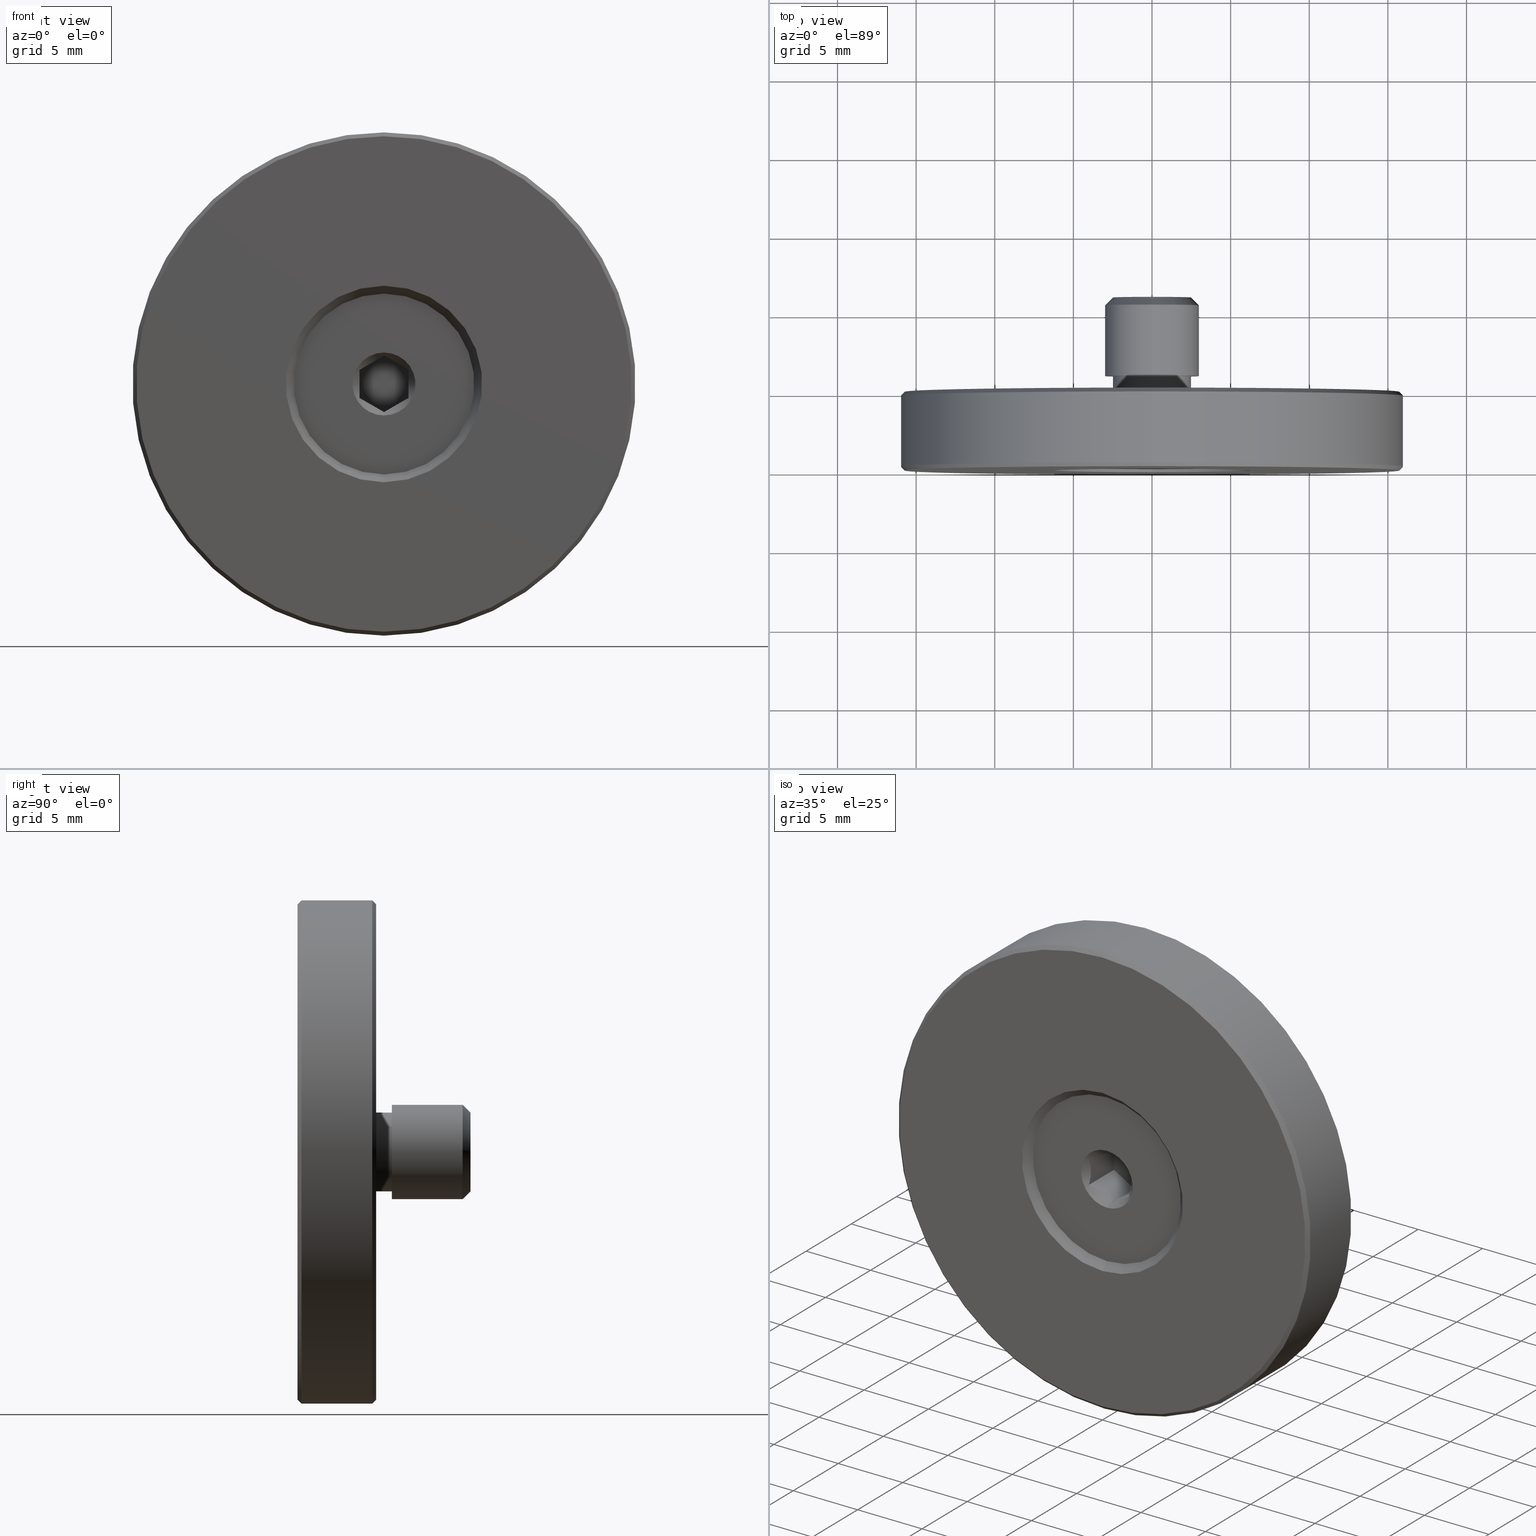
[diagram: canonical four-view strip — front | top / right | iso, engineering-drawing reading convention]
A machine part, canonical four-view strip (front | top / right | iso — engineering-drawing reading convention). The complete STEP part file that produces these views, byte-faithful:
ISO-10303-21;
HEADER;
FILE_DESCRIPTION (( 'STEP AP203' ),
    '1' );
FILE_NAME ('1.4.6.1_ZGD-1.0B_1.0Ӣ��֧�˵�����M6x6mm��˿��Rev.A.STEP',
    '2023-12-09T06:34:02',
    ( '' ),
    ( '' ),
    'SwSTEP 2.0',
    'SolidWorks 2021',
    '' );
FILE_SCHEMA (( 'CONFIG_CONTROL_DESIGN' ));
ENDSEC;

DATA;
#1 = AXIS2_PLACEMENT_3D ( 'NONE', #628, #698, #433 ) ;
#2 = ADVANCED_FACE ( 'NONE', ( #33 ), #144, .T. ) ;
#3 = DIRECTION ( 'NONE',  ( 8.659560562354958743E-17, -0.7071067811865454633, 0.7071067811865496822 ) ) ;
#4 = AXIS2_PLACEMENT_3D ( 'NONE', #822, #27, #553 ) ;
#5 = CC_DESIGN_DATE_AND_TIME_ASSIGNMENT ( #766, #241, ( #310 ) ) ;
#6 = CARTESIAN_POINT ( 'NONE',  ( -1.550000000000000488, 0.9501134359124662199, -0.3136435629120977175 ) ) ;
#7 = LINE ( 'NONE', #673, #75 ) ;
#8 = CARTESIAN_POINT ( 'NONE',  ( 0.000000000000000000, 5.000000000000000000, 0.000000000000000000 ) ) ;
#9 = CIRCLE ( 'NONE', #799, 16.00000000000000000 ) ;
#10 = VECTOR ( 'NONE', #763, 1000.000000000000000 ) ;
#11 = EDGE_CURVE ( 'NONE', #259, #512, #9, .T. ) ;
#12 = FACE_OUTER_BOUND ( 'NONE', #325, .T. ) ;
#13 = DIRECTION ( 'NONE',  ( 0.000000000000000000, 1.000000000000000000, 0.000000000000000000 ) ) ;
#14 = ORIENTED_EDGE ( 'NONE', *, *, #677, .T. ) ;
#15 = DIRECTION ( 'NONE',  ( -0.000000000000000000, -1.000000000000000000, -0.000000000000000000 ) ) ;
#16 = ORIENTED_EDGE ( 'NONE', *, *, #460, .F. ) ;
#17 = CARTESIAN_POINT ( 'NONE',  ( 0.000000000000000000, 6.000000000000000000, 0.000000000000000000 ) ) ;
#18 = CARTESIAN_POINT ( 'NONE',  ( 1.549999999999999600, 3.500000000000000000, 0.8948929172439209490 ) ) ;
#19 = CARTESIAN_POINT ( 'NONE',  ( 1.959434878635765131E-15, 4.750000000000000000, 16.00000000000000000 ) ) ;
#20 = LINE ( 'NONE', #139, #236 ) ;
#21 = FACE_BOUND ( 'NONE', #631, .T. ) ;
#22 = CARTESIAN_POINT ( 'NONE',  ( -1.550000000000000266, 3.500000000000000000, 0.8948929172439208379 ) ) ;
#23 = LINE ( 'NONE', #96, #332 ) ;
#24 = PLANE ( 'NONE',  #124 ) ;
#25 = ORIENTED_EDGE ( 'NONE', *, *, #140, .T. ) ;
#26 = DIRECTION ( 'NONE',  ( 8.659560562354948882E-17, -0.7071067811865463515, 0.7071067811865487940 ) ) ;
#27 = DIRECTION ( 'NONE',  ( 0.000000000000000000, -1.000000000000000000, 0.000000000000000000 ) ) ;
#28 = CARTESIAN_POINT ( 'NONE',  ( 0.000000000000000000, 0.5000000000000000000, 0.000000000000000000 ) ) ;
#29 = EDGE_LOOP ( 'NONE', ( #326, #690, #44, #37 ) ) ;
#30 = CARTESIAN_POINT ( 'NONE',  ( -1.042767627525058138, 0.9506610853905053116, 1.187743664034020874 ) ) ;
#31 = FACE_OUTER_BOUND ( 'NONE', #751, .T. ) ;
#32 = CARTESIAN_POINT ( 'NONE',  ( 0.000000000000000000, 10.49999999999999645, 0.000000000000000000 ) ) ;
#33 = FACE_OUTER_BOUND ( 'NONE', #650, .T. ) ;
#34 = EDGE_LOOP ( 'NONE', ( #246, #789, #824, #839, #723, #818 ) ) ;
#35 = CARTESIAN_POINT ( 'NONE',  ( 0.000000000000000000, 11.00000000000000000, -2.499999999999995115 ) ) ;
#36 = DIRECTION ( 'NONE',  ( 0.000000000000000000, 0.000000000000000000, 1.000000000000000000 ) ) ;
#37 = ORIENTED_EDGE ( 'NONE', *, *, #11, .F. ) ;
#38 = ADVANCED_FACE ( 'NONE', ( #604 ), #676, .T. ) ;
#39 = APPROVAL_ROLE ( '' ) ;
#40 = DIRECTION ( 'NONE',  ( 0.000000000000000000, 0.000000000000000000, 1.000000000000000000 ) ) ;
#41 = AXIS2_PLACEMENT_3D ( 'NONE', #801, #290, #217 ) ;
#42 = DIRECTION ( 'NONE',  ( 0.000000000000000000, 0.000000000000000000, -1.000000000000000000 ) ) ;
#43 = EDGE_LOOP ( 'NONE', ( #716, #188 ) ) ;
#44 = ORIENTED_EDGE ( 'NONE', *, *, #778, .T. ) ;
#45 = CARTESIAN_POINT ( 'NONE',  ( 0.000000000000000000, 0.5000000000000000000, 0.000000000000000000 ) ) ;
#46 = PLANE ( 'NONE',  #601 ) ;
#47 = ORIENTED_EDGE ( 'NONE', *, *, #717, .T. ) ;
#48 = ORIENTED_EDGE ( 'NONE', *, *, #302, .F. ) ;
#49 = PERSON_AND_ORGANIZATION ( #65, #525 ) ;
#50 = CARTESIAN_POINT ( 'NONE',  ( 0.000000000000000000, 4.750000000000000000, 0.000000000000000000 ) ) ;
#51 = VERTEX_POINT ( 'NONE', #620 ) ;
#52 = EDGE_CURVE ( 'NONE', #119, #780, #559, .T. ) ;
#53 = ORIENTED_EDGE ( 'NONE', *, *, #537, .T. ) ;
#54 = DATE_AND_TIME ( #652, #746 ) ;
#55 = AXIS2_PLACEMENT_3D ( 'NONE', #412, #480, #823 ) ;
#56 = EDGE_LOOP ( 'NONE', ( #560, #505, #314, #813 ) ) ;
#57 = CONICAL_SURFACE ( 'NONE', #567, 2.000000000000000000, 0.7853981633974500554 ) ;
#58 = VERTEX_POINT ( 'NONE', #817 ) ;
#59 = EDGE_CURVE ( 'NONE', #847, #642, #388, .T. ) ;
#60 = CARTESIAN_POINT ( 'NONE',  ( 1.305059910654586153, 0.8395827459335329923, 1.036309143762826901 ) ) ;
#61 = EDGE_CURVE ( 'NONE', #58, #378, #323, .T. ) ;
#62 = CARTESIAN_POINT ( 'NONE',  ( 1.428895979059656929, 0.7801336046020121984, 0.9648123563337740460 ) ) ;
#63 = APPROVAL ( #428, 'δָ��' ) ;
#64 = FACE_OUTER_BOUND ( 'NONE', #844, .T. ) ;
#65 = PERSON ( 'δָ��', 'δָ��', 'δָ��', ('δָ��'), ('δָ��'), ('δָ��') ) ;
#66 = AXIS2_PLACEMENT_3D ( 'NONE', #484, #750, #157 ) ;
#67 = DIRECTION ( 'NONE',  ( 0.000000000000000000, 0.000000000000000000, -1.000000000000000000 ) ) ;
#68 = EDGE_CURVE ( 'NONE', #571, #700, #20, .T. ) ;
#69 = AXIS2_PLACEMENT_3D ( 'NONE', #284, #735, #740 ) ;
#70 = ADVANCED_FACE ( 'NONE', ( #744 ), #812, .T. ) ;
#71 = DIRECTION ( 'NONE',  ( 0.000000000000000000, -0.000000000000000000, 1.000000000000000000 ) ) ;
#72 = FACE_OUTER_BOUND ( 'NONE', #655, .T. ) ;
#73 = CARTESIAN_POINT ( 'NONE',  ( -1.550000000000000266, 0.7102141655121587682, 0.8948929172439209490 ) ) ;
#74 = DIRECTION ( 'NONE',  ( 0.5000000000000001110, -0.000000000000000000, 0.8660254037844385966 ) ) ;
#75 = VECTOR ( 'NONE', #26, 1000.000000000000000 ) ;
#76 = CIRCLE ( 'NONE', #497, 16.00000000000000000 ) ;
#77 = EDGE_CURVE ( 'NONE', #259, #160, #338, .T. ) ;
#78 = FACE_OUTER_BOUND ( 'NONE', #806, .T. ) ;
#79 = CARTESIAN_POINT ( 'NONE',  ( 0.000000000000000000, 11.00000000000000000, 0.000000000000000000 ) ) ;
#80 = CARTESIAN_POINT ( 'NONE',  ( 0.2449400893454129757, 0.8395827459335335474, -1.648369607968934281 ) ) ;
#81 = DIRECTION ( 'NONE',  ( 0.000000000000000000, -1.000000000000000000, 0.000000000000000000 ) ) ;
#82 = CARTESIAN_POINT ( 'NONE',  ( -0.6368339000777583081, 0.9496641991101084646, 1.422109610848868000 ) ) ;
#83 = DIRECTION ( 'NONE',  ( 0.000000000000000000, 0.000000000000000000, 1.000000000000000000 ) ) ;
#84 = CARTESIAN_POINT ( 'NONE',  ( 0.000000000000000000, 0.2499999999999967526, -16.00000000000000000 ) ) ;
#85 = CARTESIAN_POINT ( 'NONE',  ( 0.000000000000000000, 0.2499999999999967526, 0.000000000000000000 ) ) ;
#86 = ORIENTED_EDGE ( 'NONE', *, *, #171, .T. ) ;
#87 = CIRCLE ( 'NONE', #611, 15.74999999999999645 ) ;
#88 = CARTESIAN_POINT ( 'NONE',  ( -1.306363542919035892, 0.8508777395928377452, 1.035556491324022721 ) ) ;
#89 = LINE ( 'NONE', #22, #305 ) ;
#90 = CARTESIAN_POINT ( 'NONE',  ( 1.306363542919034781, 0.8508777395928381893, -1.035556491324022055 ) ) ;
#91 = DIRECTION ( 'NONE',  ( 0.000000000000000000, -1.000000000000000000, 0.000000000000000000 ) ) ;
#92 = EDGE_LOOP ( 'NONE', ( #98, #739 ) ) ;
#93 = ADVANCED_FACE ( 'NONE', ( #287 ), #57, .F. ) ;
#94 = LINE ( 'NONE', #808, #365 ) ;
#95 = LINE ( 'NONE', #18, #791 ) ;
#96 = CARTESIAN_POINT ( 'NONE',  ( 1.928818708657080556E-15, 5.000000000000000000, 15.74999999999999289 ) ) ;
#97 = PLANE ( 'NONE',  #800 ) ;
#98 = ORIENTED_EDGE ( 'NONE', *, *, #158, .T. ) ;
#99 = DATE_AND_TIME ( #322, #379 ) ;
#100 = FACE_OUTER_BOUND ( 'NONE', #56, .T. ) ;
#101 = CARTESIAN_POINT ( 'NONE',  ( 0.000000000000000000, 0.000000000000000000, 0.000000000000000000 ) ) ;
#102 = ORIENTED_EDGE ( 'NONE', *, *, #190, .F. ) ;
#103 = CONICAL_SURFACE ( 'NONE', #260, 16.00000000000000000, 0.7853981633974621568 ) ;
#104 = FACE_BOUND ( 'NONE', #578, .T. ) ;
#105 = DIRECTION ( 'NONE',  ( 0.000000000000000000, 0.000000000000000000, 1.000000000000000000 ) ) ;
#106 = VERTEX_POINT ( 'NONE', #225 ) ;
#107 = ORIENTED_EDGE ( 'NONE', *, *, #340, .T. ) ;
#108 = PERSON_AND_ORGANIZATION_ROLE ( 'design_owner' ) ;
#109 = PLANE ( 'NONE',  #755 ) ;
#110 = APPLICATION_CONTEXT ( 'configuration controlled 3d designs of mechanical parts and assemblies' ) ;
#111 = CIRCLE ( 'NONE', #145, 3.000000000000000444 ) ;
#112 = DIRECTION ( 'NONE',  ( 0.000000000000000000, 1.000000000000000000, 0.000000000000000000 ) ) ;
#113 = ORIENTED_EDGE ( 'NONE', *, *, #328, .T. ) ;
#114 = ORIENTED_EDGE ( 'NONE', *, *, #665, .T. ) ;
#115 = APPROVAL_ROLE ( '' ) ;
#116 = ADVANCED_FACE ( 'NONE', ( #150 ), #97, .F. ) ;
#117 = DIRECTION ( 'NONE',  ( -0.000000000000000000, -1.000000000000000000, -0.000000000000000000 ) ) ;
#118 = ORIENTED_EDGE ( 'NONE', *, *, #227, .F. ) ;
#119 = VERTEX_POINT ( 'NONE', #159 ) ;
#120 = APPROVAL_DATE_TIME ( #432, #796 ) ;
#121 = ORIENTED_EDGE ( 'NONE', *, *, #598, .F. ) ;
#122 = EDGE_CURVE ( 'NONE', #299, #160, #76, .T. ) ;
#123 = ORIENTED_EDGE ( 'NONE', *, *, #737, .T. ) ;
#124 = AXIS2_PLACEMENT_3D ( 'NONE', #670, #74, #548 ) ;
#125 = ORIENTED_EDGE ( 'NONE', *, *, #230, .F. ) ;
#126 = CARTESIAN_POINT ( 'NONE',  ( -0.5072323724749422391, 0.9506610853905059777, -1.496935087697739419 ) ) ;
#127 = ADVANCED_FACE ( 'NONE', ( #220 ), #24, .F. ) ;
#128 = AXIS2_PLACEMENT_3D ( 'NONE', #275, #264, #198 ) ;
#129 = PRODUCT_RELATED_PRODUCT_CATEGORY ( 'detail', '', ( #399 ) ) ;
#130 = CARTESIAN_POINT ( 'NONE',  ( 0.000000000000000000, 4.750000000000000000, -16.00000000000000000 ) ) ;
#131 = EDGE_LOOP ( 'NONE', ( #544, #180 ) ) ;
#132 = CARTESIAN_POINT ( 'NONE',  ( 3.061616997868377225E-16, 11.00000000000000000, 2.499999999999995115 ) ) ;
#133 = ADVANCED_FACE ( 'NONE', ( #485, #359 ), #46, .F. ) ;
#134 = FACE_OUTER_BOUND ( 'NONE', #797, .T. ) ;
#135 = CONICAL_SURFACE ( 'NONE', #222, 5.750000000000000000, 0.7853981633974491672 ) ;
#136 = CARTESIAN_POINT ( 'NONE',  ( -5.972775179214869693E-16, 0.7102141655121593233, -1.789785834487840122 ) ) ;
#137 = DIRECTION ( 'NONE',  ( 0.000000000000000000, 0.000000000000000000, -1.000000000000000000 ) ) ;
#138 = CARTESIAN_POINT ( 'NONE',  ( 0.000000000000000000, 5.000000000000000000, -16.00000000000000000 ) ) ;
#139 = CARTESIAN_POINT ( 'NONE',  ( 0.000000000000000000, 11.00000000000000000, -2.499999999999995115 ) ) ;
#140 = EDGE_CURVE ( 'NONE', #833, #502, #203, .T. ) ;
#141 = DIRECTION ( 'NONE',  ( 0.000000000000000000, -0.7071067811865378028, -0.7071067811865573427 ) ) ;
#142 = CARTESIAN_POINT ( 'NONE',  ( 0.000000000000000000, 0.2499999999999967526, 16.00000000000000000 ) ) ;
#143 = CARTESIAN_POINT ( 'NONE',  ( -3.705363497162986983E-18, 3.500000000000000000, 1.789785834487840788 ) ) ;
#144 = PLANE ( 'NONE',  #55 ) ;
#145 = AXIS2_PLACEMENT_3D ( 'NONE', #703, #569, #834 ) ;
#146 = DIRECTION ( 'NONE',  ( 0.000000000000000000, -0.7071067811865463515, -0.7071067811865487940 ) ) ;
#147 = CARTESIAN_POINT ( 'NONE',  ( 0.000000000000000000, 5.000000000000000000, -15.74999999999999289 ) ) ;
#148 = CARTESIAN_POINT ( 'NONE',  ( 0.1211040209403422968, 0.7801336046020121984, -1.719866395397986247 ) ) ;
#149 = UNCERTAINTY_MEASURE_WITH_UNIT (LENGTH_MEASURE( 1.000000000000000082E-05 ), #216, 'distance_accuracy_value', 'NONE');
#150 = FACE_OUTER_BOUND ( 'NONE', #644, .T. ) ;
#151 = EDGE_LOOP ( 'NONE', ( #549, #711 ) ) ;
#152 = APPROVAL_PERSON_ORGANIZATION ( #632, #796, #248 ) ;
#153 = EDGE_CURVE ( 'NONE', #700, #51, #381, .T. ) ;
#154 = DIRECTION ( 'NONE',  ( 0.000000000000000000, 0.000000000000000000, -1.000000000000000000 ) ) ;
#155 = VECTOR ( 'NONE', #406, 999.9999999999998863 ) ;
#156 = DIRECTION ( 'NONE',  ( -0.000000000000000000, -1.000000000000000000, -0.000000000000000000 ) ) ;
#157 = DIRECTION ( 'NONE',  ( 0.000000000000000000, -0.000000000000000000, 1.000000000000000000 ) ) ;
#158 = EDGE_CURVE ( 'NONE', #304, #309, #674, .T. ) ;
#159 = CARTESIAN_POINT ( 'NONE',  ( -5.302822042044525202E-16, 3.500000000000000000, -1.789785834487839900 ) ) ;
#160 = VERTEX_POINT ( 'NONE', #303 ) ;
#161 = AXIS2_PLACEMENT_3D ( 'NONE', #362, #829, #367 ) ;
#162 = LINE ( 'NONE', #821, #478 ) ;
#163 = DIRECTION ( 'NONE',  ( -0.000000000000000000, -1.000000000000000000, -0.000000000000000000 ) ) ;
#164 = CARTESIAN_POINT ( 'NONE',  ( 0.000000000000000000, 0.5000000000000000000, 0.000000000000000000 ) ) ;
#165 = ORIENTED_EDGE ( 'NONE', *, *, #665, .F. ) ;
#166 = APPLICATION_PROTOCOL_DEFINITION ( 'international standard', 'config_control_design', 1994, #110 ) ;
#167 = DIRECTION ( 'NONE',  ( 0.000000000000000000, 0.000000000000000000, 1.000000000000000000 ) ) ;
#168 = VECTOR ( 'NONE', #307, 1000.000000000000000 ) ;
#169 = DIRECTION ( 'NONE',  ( 0.000000000000000000, -1.000000000000000000, 0.000000000000000000 ) ) ;
#170 = ORIENTED_EDGE ( 'NONE', *, *, #660, .F. ) ;
#171 = EDGE_CURVE ( 'NONE', #443, #764, #564, .T. ) ;
#172 = DIRECTION ( 'NONE',  ( 0.000000000000000000, 1.000000000000000000, 0.000000000000000000 ) ) ;
#173 = DIRECTION ( 'NONE',  ( 0.000000000000000000, 1.000000000000000000, 0.000000000000000000 ) ) ;
#174 = ORIENTED_EDGE ( 'NONE', *, *, #819, .F. ) ;
#175 = VERTEX_POINT ( 'NONE', #574 ) ;
#176 = DIRECTION ( 'NONE',  ( 0.000000000000000000, 1.000000000000000000, 0.000000000000000000 ) ) ;
#177 = B_SPLINE_CURVE_WITH_KNOTS ( 'NONE', 3,
 ( #538, #62, #60, #330, #727, #528, #329, #588 ),
 .UNSPECIFIED., .F., .F.,
 ( 4, 2, 2, 4 ),
 ( 2.544363529774557411E-07, 0.0004624475619159531116, 0.0009246406874789288299, 0.001849026938604880158 ),
 .UNSPECIFIED. ) ;
#178 = CARTESIAN_POINT ( 'NONE',  ( 0.000000000000000000, 5.000000000000000000, -15.74999999999999289 ) ) ;
#179 = ORIENTED_EDGE ( 'NONE', *, *, #836, .T. ) ;
#180 = ORIENTED_EDGE ( 'NONE', *, *, #230, .T. ) ;
#181 = FACE_OUTER_BOUND ( 'NONE', #581, .T. ) ;
#182 = CARTESIAN_POINT ( 'NONE',  ( -1.550000000000000266, 3.500000000000000000, -0.8948929172439197277 ) ) ;
#183 = ORIENTED_EDGE ( 'NONE', *, *, #253, .F. ) ;
#184 = VERTEX_POINT ( 'NONE', #445 ) ;
#185 = VERTEX_POINT ( 'NONE', #580 ) ;
#186 = CIRCLE ( 'NONE', #719, 3.000000000000000444 ) ;
#187 = ORIENTED_EDGE ( 'NONE', *, *, #394, .T. ) ;
#188 = ORIENTED_EDGE ( 'NONE', *, *, #576, .F. ) ;
#189 = ORIENTED_EDGE ( 'NONE', *, *, #778, .F. ) ;
#190 = EDGE_CURVE ( 'NONE', #315, #626, #339, .T. ) ;
#191 = CIRCLE ( 'NONE', #261, 2.499999999999995115 ) ;
#192 = AXIS2_PLACEMENT_3D ( 'NONE', #779, #843, #504 ) ;
#193 = APPROVAL_PERSON_ORGANIZATION ( #639, #63, #39 ) ;
#194 = DIRECTION ( 'NONE',  ( 0.000000000000000000, -1.000000000000000000, 0.000000000000000000 ) ) ;
#195 = CIRCLE ( 'NONE', #128, 2.500000000000000444 ) ;
#196 = CYLINDRICAL_SURFACE ( 'NONE', #729, 16.00000000000000000 ) ;
#197 = EDGE_CURVE ( 'NONE', #175, #185, #837, .T. ) ;
#198 = DIRECTION ( 'NONE',  ( 0.000000000000000000, 0.000000000000000000, 1.000000000000000000 ) ) ;
#199 = CIRCLE ( 'NONE', #695, 5.750000000000000000 ) ;
#200 = DIRECTION ( 'NONE',  ( 0.000000000000000000, 0.000000000000000000, 1.000000000000000000 ) ) ;
#201 = EDGE_CURVE ( 'NONE', #378, #58, #199, .T. ) ;
#202 = FACE_OUTER_BOUND ( 'NONE', #681, .T. ) ;
#203 = B_SPLINE_CURVE_WITH_KNOTS ( 'NONE', 3,
 ( #715, #630, #430, #768, #647, #434, #363, #699 ),
 .UNSPECIFIED., .F., .F.,
 ( 4, 2, 2, 4 ),
 ( 0.001570775741427415939, 0.002495383013869410284, 0.002957686650090407023, 0.003419990286311404195 ),
 .UNSPECIFIED. ) ;
#204 = MECHANICAL_CONTEXT ( 'NONE', #474, 'mechanical' ) ;
#205 = LINE ( 'NONE', #147, #788 ) ;
#206 = DIRECTION ( 'NONE',  ( -0.000000000000000000, -1.000000000000000000, -0.000000000000000000 ) ) ;
#207 = DIRECTION ( 'NONE',  ( 0.000000000000000000, 0.000000000000000000, -1.000000000000000000 ) ) ;
#208 = AXIS2_PLACEMENT_3D ( 'NONE', #609, #747, #209 ) ;
#209 = DIRECTION ( 'NONE',  ( 1.211544031239643760E-16, 0.000000000000000000, -1.000000000000000000 ) ) ;
#210 = CARTESIAN_POINT ( 'NONE',  ( 0.000000000000000000, 6.000000000000000000, 0.000000000000000000 ) ) ;
#211 = EDGE_CURVE ( 'NONE', #758, #413, #534, .T. ) ;
#212 = CARTESIAN_POINT ( 'NONE',  ( 1.944126793646422844E-15, 0.000000000000000000, -15.74999999999999645 ) ) ;
#213 = CARTESIAN_POINT ( 'NONE',  ( -3.705363497162986983E-18, 3.500000000000000000, 1.789785834487840788 ) ) ;
#214 = ORIENTED_EDGE ( 'NONE', *, *, #211, .F. ) ;
#215 = AXIS2_PLACEMENT_3D ( 'NONE', #692, #335, #551 ) ;
#216 =( LENGTH_UNIT ( ) NAMED_UNIT ( * ) SI_UNIT ( .MILLI., .METRE. ) );
#217 = DIRECTION ( 'NONE',  ( 0.000000000000000000, 0.000000000000000000, 1.000000000000000000 ) ) ;
#218 = CC_DESIGN_DATE_AND_TIME_ASSIGNMENT ( #444, #646, ( #683 ) ) ;
#219 = FACE_BOUND ( 'NONE', #752, .T. ) ;
#220 = FACE_OUTER_BOUND ( 'NONE', #845, .T. ) ;
#221 = ORIENTED_EDGE ( 'NONE', *, *, #786, .T. ) ;
#222 = AXIS2_PLACEMENT_3D ( 'NONE', #570, #441, #710 ) ;
#223 = CARTESIAN_POINT ( 'NONE',  ( 1.549999999999999600, 3.500000000000000000, 0.8948929172439209490 ) ) ;
#224 = DIRECTION ( 'NONE',  ( -0.000000000000000000, -1.000000000000000000, -0.000000000000000000 ) ) ;
#225 = CARTESIAN_POINT ( 'NONE',  ( -1.550000000000000266, 0.7102141655121587682, 0.8948929172439209490 ) ) ;
#226 = ORIENTED_EDGE ( 'NONE', *, *, #265, .F. ) ;
#227 = EDGE_CURVE ( 'NONE', #512, #259, #831, .T. ) ;
#228 = CARTESIAN_POINT ( 'NONE',  ( -1.550000000000000266, 0.7102141655121587682, 0.8948929172439209490 ) ) ;
#229 = PLANE ( 'NONE',  #1 ) ;
#230 = EDGE_CURVE ( 'NONE', #697, #571, #592, .T. ) ;
#231 = ORIENTED_EDGE ( 'NONE', *, *, #537, .F. ) ;
#232 = VERTEX_POINT ( 'NONE', #178 ) ;
#233 = CIRCLE ( 'NONE', #41, 15.74999999999999289 ) ;
#234 = CALENDAR_DATE ( 2023, 9, 12 ) ;
#235 = CARTESIAN_POINT ( 'NONE',  ( 0.000000000000000000, 0.2499999999999967526, 0.000000000000000000 ) ) ;
#236 = VECTOR ( 'NONE', #350, 1000.000000000000114 ) ;
#237 = CARTESIAN_POINT ( 'NONE',  ( 0.000000000000000000, 0.5000000000000000000, 0.000000000000000000 ) ) ;
#238 = ORIENTED_EDGE ( 'NONE', *, *, #660, .T. ) ;
#239 = ADVANCED_FACE ( 'NONE', ( #368 ), #135, .F. ) ;
#240 = CC_DESIGN_APPROVAL ( #796, ( #591 ) ) ;
#241 = DATE_TIME_ROLE ( 'classification_date' ) ;
#242 = DIRECTION ( 'NONE',  ( -0.8660254037844384856, 0.000000000000000000, 0.5000000000000002220 ) ) ;
#243 = DESIGN_CONTEXT ( 'detailed design', #110, 'design' ) ;
#244 = CARTESIAN_POINT ( 'NONE',  ( 0.000000000000000000, 11.00000000000000000, -3.000000000000000444 ) ) ;
#245 = ORIENTED_EDGE ( 'NONE', *, *, #651, .T. ) ;
#246 = ORIENTED_EDGE ( 'NONE', *, *, #724, .F. ) ;
#247 = VECTOR ( 'NONE', #194, 1000.000000000000000 ) ;
#248 = APPROVAL_ROLE ( '' ) ;
#249 = DIRECTION ( 'NONE',  ( 0.8660254037844384856, 0.000000000000000000, -0.5000000000000002220 ) ) ;
#250 = DIRECTION ( 'NONE',  ( 0.000000000000000000, -0.000000000000000000, 1.000000000000000000 ) ) ;
#251 = ORIENTED_EDGE ( 'NONE', *, *, #765, .F. ) ;
#252 = ORIENTED_EDGE ( 'NONE', *, *, #394, .F. ) ;
#253 = EDGE_CURVE ( 'NONE', #184, #625, #266, .T. ) ;
#254 = ORIENTED_EDGE ( 'NONE', *, *, #402, .T. ) ;
#255 = MANIFOLD_SOLID_BREP ( '����3', #496 ) ;
#256 = EDGE_LOOP ( 'NONE', ( #781, #282, #258, #838 ) ) ;
#257 = COORDINATED_UNIVERSAL_TIME_OFFSET ( 8, 0, .AHEAD. ) ;
#258 = ORIENTED_EDGE ( 'NONE', *, *, #552, .F. ) ;
#259 = VERTEX_POINT ( 'NONE', #19 ) ;
#260 = AXIS2_PLACEMENT_3D ( 'NONE', #691, #686, #540 ) ;
#261 = AXIS2_PLACEMENT_3D ( 'NONE', #79, #680, #416 ) ;
#262 = CARTESIAN_POINT ( 'NONE',  ( -1.305059910654586375, 0.8395827459335329923, -1.036309143762825569 ) ) ;
#263 = CC_DESIGN_APPROVAL ( #63, ( #310 ) ) ;
#264 = DIRECTION ( 'NONE',  ( 0.000000000000000000, 1.000000000000000000, 0.000000000000000000 ) ) ;
#265 = EDGE_CURVE ( 'NONE', #700, #376, #186, .T. ) ;
#266 = CIRCLE ( 'NONE', #556, 2.500000000000000444 ) ;
#267 = CONICAL_SURFACE ( 'NONE', #418, 15.74999999999999289, 0.7853981633974621568 ) ;
#268 = CARTESIAN_POINT ( 'NONE',  ( 1.944126793646422844E-15, 5.000000000000000000, 15.74999999999999289 ) ) ;
#269 = CARTESIAN_POINT ( 'NONE',  ( 0.000000000000000000, 10.49999999999999645, 0.000000000000000000 ) ) ;
#270 = CYLINDRICAL_SURFACE ( 'NONE', #316, 2.500000000000000444 ) ;
#271 = AXIS2_PLACEMENT_3D ( 'NONE', #237, #375, #635 ) ;
#272 = DIRECTION ( 'NONE',  ( 0.000000000000000000, 0.000000000000000000, 1.000000000000000000 ) ) ;
#273 = CARTESIAN_POINT ( 'NONE',  ( 0.000000000000000000, 0.4999999999999978351, -5.750000000000000000 ) ) ;
#274 = ORIENTED_EDGE ( 'NONE', *, *, #737, .F. ) ;
#275 = CARTESIAN_POINT ( 'NONE',  ( 0.000000000000000000, 5.000000000000000000, 0.000000000000000000 ) ) ;
#276 = DIRECTION ( 'NONE',  ( 0.000000000000000000, 0.000000000000000000, 1.000000000000000000 ) ) ;
#277 = EDGE_CURVE ( 'NONE', #385, #259, #23, .T. ) ;
#278 =( NAMED_UNIT ( * ) SI_UNIT ( $, .STERADIAN. ) SOLID_ANGLE_UNIT ( ) );
#279 = DIRECTION ( 'NONE',  ( 0.000000000000000000, 0.000000000000000000, -1.000000000000000000 ) ) ;
#280 = DIRECTION ( 'NONE',  ( 0.000000000000000000, -1.000000000000000000, 0.000000000000000000 ) ) ;
#281 = DIRECTION ( 'NONE',  ( -0.000000000000000000, -1.000000000000000000, -0.000000000000000000 ) ) ;
#282 = ORIENTED_EDGE ( 'NONE', *, *, #371, .T. ) ;
#283 = CC_DESIGN_PERSON_AND_ORGANIZATION_ASSIGNMENT ( #448, #108, ( #399 ) ) ;
#284 = CARTESIAN_POINT ( 'NONE',  ( 0.000000000000000000, 11.00000000000000000, 0.000000000000000000 ) ) ;
#285 = CARTESIAN_POINT ( 'NONE',  ( 7.041719095097280880E-16, 0.4999999999999978351, 5.750000000000000000 ) ) ;
#286 = DIRECTION ( 'NONE',  ( 0.8660254037844387076, 0.000000000000000000, 0.4999999999999997224 ) ) ;
#287 = FACE_OUTER_BOUND ( 'NONE', #34, .T. ) ;
#288 = ORIENTED_EDGE ( 'NONE', *, *, #340, .F. ) ;
#289 = DIRECTION ( 'NONE',  ( 0.000000000000000000, -1.000000000000000000, 0.000000000000000000 ) ) ;
#290 = DIRECTION ( 'NONE',  ( 0.000000000000000000, 1.000000000000000000, 0.000000000000000000 ) ) ;
#291 = PLANE ( 'NONE',  #66 ) ;
#292 = DIRECTION ( 'NONE',  ( 0.000000000000000000, 0.000000000000000000, -1.000000000000000000 ) ) ;
#293 = ORIENTED_EDGE ( 'NONE', *, *, #475, .F. ) ;
#294 = ADVANCED_FACE ( 'NONE', ( #423 ), #488, .T. ) ;
#295 = CONICAL_SURFACE ( 'NONE', #784, 5.750000000000000000, 0.7853981633974491672 ) ;
#296 = DIRECTION ( 'NONE',  ( 0.000000000000000000, 0.000000000000000000, -1.000000000000000000 ) ) ;
#297 = DIRECTION ( 'NONE',  ( 0.000000000000000000, 0.000000000000000000, -1.000000000000000000 ) ) ;
#298 = CARTESIAN_POINT ( 'NONE',  ( 0.000000000000000000, 6.000000000000000000, 0.000000000000000000 ) ) ;
#299 = VERTEX_POINT ( 'NONE', #84 ) ;
#300 = APPROVAL_STATUS ( 'not_yet_approved' ) ;
#301 = CARTESIAN_POINT ( 'NONE',  ( -1.550000000000000488, 0.8490142665462202531, -0.6172927151760881914 ) ) ;
#302 = EDGE_CURVE ( 'NONE', #555, #369, #606, .T. ) ;
#303 = CARTESIAN_POINT ( 'NONE',  ( 1.959434878635765131E-15, 0.2499999999999967526, 16.00000000000000000 ) ) ;
#304 = VERTEX_POINT ( 'NONE', #348 ) ;
#305 = VECTOR ( 'NONE', #137, 1000.000000000000000 ) ;
#306 = CARTESIAN_POINT ( 'NONE',  ( 3.673940397442060361E-16, 6.000000000000000000, 3.000000000000000444 ) ) ;
#307 = DIRECTION ( 'NONE',  ( -0.000000000000000000, -1.000000000000000000, -0.000000000000000000 ) ) ;
#308 = ORIENTED_EDGE ( 'NONE', *, *, #836, .F. ) ;
#309 = VERTEX_POINT ( 'NONE', #212 ) ;
#310 = SECURITY_CLASSIFICATION ( '', '', #318 ) ;
#311 = DIRECTION ( 'NONE',  ( -0.000000000000000000, -1.000000000000000000, -0.000000000000000000 ) ) ;
#312 = EDGE_CURVE ( 'NONE', #780, #833, #602, .T. ) ;
#313 = DIRECTION ( 'NONE',  ( -0.000000000000000000, -1.000000000000000000, -0.000000000000000000 ) ) ;
#314 = ORIENTED_EDGE ( 'NONE', *, *, #701, .T. ) ;
#315 = VERTEX_POINT ( 'NONE', #612 ) ;
#316 = AXIS2_PLACEMENT_3D ( 'NONE', #400, #661, #331 ) ;
#317 = CC_DESIGN_PERSON_AND_ORGANIZATION_ASSIGNMENT ( #579, #498, ( #310 ) ) ;
#318 = SECURITY_CLASSIFICATION_LEVEL ( 'unclassified' ) ;
#319 = DIRECTION ( 'NONE',  ( 0.000000000000000000, 0.000000000000000000, 1.000000000000000000 ) ) ;
#320 = EDGE_LOOP ( 'NONE', ( #165, #584, #455, #773 ) ) ;
#321 = ORIENTED_EDGE ( 'NONE', *, *, #724, .T. ) ;
#322 = CALENDAR_DATE ( 2023, 9, 12 ) ;
#323 = CIRCLE ( 'NONE', #426, 5.750000000000000000 ) ;
#324 = AXIS2_PLACEMENT_3D ( 'NONE', #510, #313, #36 ) ;
#325 = EDGE_LOOP ( 'NONE', ( #495, #25, #274, #725 ) ) ;
#326 = ORIENTED_EDGE ( 'NONE', *, *, #277, .F. ) ;
#327 = AXIS2_PLACEMENT_3D ( 'NONE', #269, #397, #200 ) ;
#328 = EDGE_CURVE ( 'NONE', #119, #443, #682, .T. ) ;
#329 = CARTESIAN_POINT ( 'NONE',  ( 0.2436364570809644858, 0.8508777395928374121, 1.649122260407739127 ) ) ;
#330 = CARTESIAN_POINT ( 'NONE',  ( 1.048527335742552191, 0.9245242886812496952, 1.184418294944196370 ) ) ;
#331 = DIRECTION ( 'NONE',  ( 0.000000000000000000, 0.000000000000000000, -1.000000000000000000 ) ) ;
#332 = VECTOR ( 'NONE', #344, 1000.000000000000000 ) ;
#333 = CARTESIAN_POINT ( 'NONE',  ( 1.549999999999999822, 3.500000000000000000, -0.8948929172439203938 ) ) ;
#334 = APPLICATION_PROTOCOL_DEFINITION ( 'international standard', 'config_control_design', 1994, #474 ) ;
#335 = DIRECTION ( 'NONE',  ( 0.4999999999999998335, 0.000000000000000000, -0.8660254037844388186 ) ) ;
#336 = VECTOR ( 'NONE', #311, 1000.000000000000000 ) ;
#337 = DIRECTION ( 'NONE',  ( 0.000000000000000000, -1.000000000000000000, 0.000000000000000000 ) ) ;
#338 = LINE ( 'NONE', #543, #656 ) ;
#339 = CIRCLE ( 'NONE', #192, 2.500000000000000444 ) ;
#340 = EDGE_CURVE ( 'NONE', #555, #707, #619, .T. ) ;
#341 = CARTESIAN_POINT ( 'NONE',  ( 1.549999999999999822, 0.7102141655121594344, -0.8948929172439203938 ) ) ;
#342 = LINE ( 'NONE', #273, #741 ) ;
#343 = AXIS2_PLACEMENT_3D ( 'NONE', #599, #272, #803 ) ;
#344 = DIRECTION ( 'NONE',  ( 8.659560562355054885E-17, -0.7071067811865378028, 0.7071067811865573427 ) ) ;
#345 = DIRECTION ( 'NONE',  ( 0.000000000000000000, 0.000000000000000000, -1.000000000000000000 ) ) ;
#346 = FACE_OUTER_BOUND ( 'NONE', #43, .T. ) ;
#347 = PLANE ( 'NONE',  #712 ) ;
#348 = CARTESIAN_POINT ( 'NONE',  ( 0.000000000000000000, 0.000000000000000000, 15.74999999999999645 ) ) ;
#349 = AXIS2_PLACEMENT_3D ( 'NONE', #794, #337, #805 ) ;
#350 = DIRECTION ( 'NONE',  ( 0.000000000000000000, -0.7071067811865454633, -0.7071067811865496822 ) ) ;
#351 = ORIENTED_EDGE ( 'NONE', *, *, #598, .T. ) ;
#352 = LINE ( 'NONE', #142, #405 ) ;
#353 = ADVANCED_FACE ( 'NONE', ( #816, #219 ), #291, .T. ) ;
#354 = CARTESIAN_POINT ( 'NONE',  ( 0.6368339000777577530, 0.9496641991101094638, -1.422109610848867112 ) ) ;
#355 = ORIENTED_EDGE ( 'NONE', *, *, #59, .F. ) ;
#356 = ORIENTED_EDGE ( 'NONE', *, *, #449, .F. ) ;
#357 = CARTESIAN_POINT ( 'NONE',  ( -1.550000000000000266, 0.7102141655121593233, -0.8948929172439198387 ) ) ;
#358 = CARTESIAN_POINT ( 'NONE',  ( -5.302822042044525202E-16, 3.500000000000000000, -1.789785834487839900 ) ) ;
#359 = FACE_OUTER_BOUND ( 'NONE', #92, .T. ) ;
#360 = ORIENTED_EDGE ( 'NONE', *, *, #475, .T. ) ;
#361 = ADVANCED_FACE ( 'NONE', ( #417 ), #527, .T. ) ;
#362 = CARTESIAN_POINT ( 'NONE',  ( 0.000000000000000000, 0.2499999999999967526, 0.000000000000000000 ) ) ;
#363 = CARTESIAN_POINT ( 'NONE',  ( 1.549999999999999822, 0.7794565359346358191, 0.7564081763989686236 ) ) ;
#364 = ORIENTED_EDGE ( 'NONE', *, *, #302, .T. ) ;
#365 = VECTOR ( 'NONE', #146, 1000.000000000000000 ) ;
#366 = PERSON_AND_ORGANIZATION ( #65, #525 ) ;
#367 = DIRECTION ( 'NONE',  ( 0.000000000000000000, 0.000000000000000000, 1.000000000000000000 ) ) ;
#368 = FACE_OUTER_BOUND ( 'NONE', #320, .T. ) ;
#369 = VERTEX_POINT ( 'NONE', #624 ) ;
#370 = ORIENTED_EDGE ( 'NONE', *, *, #201, .T. ) ;
#371 = EDGE_CURVE ( 'NONE', #309, #299, #472, .T. ) ;
#372 = AXIS2_PLACEMENT_3D ( 'NONE', #767, #172, #40 ) ;
#373 = PERSON_AND_ORGANIZATION ( #65, #525 ) ;
#374 = LINE ( 'NONE', #640, #336 ) ;
#375 = DIRECTION ( 'NONE',  ( 0.000000000000000000, -1.000000000000000000, 0.000000000000000000 ) ) ;
#376 = VERTEX_POINT ( 'NONE', #675 ) ;
#377 = APPROVAL ( #300, 'δָ��' ) ;
#378 = VERTEX_POINT ( 'NONE', #395 ) ;
#379 = LOCAL_TIME ( 14, 34, 2.000000000000000000, #720 ) ;
#380 = COORDINATED_UNIVERSAL_TIME_OFFSET ( 8, 0, .AHEAD. ) ;
#381 = LINE ( 'NONE', #244, #168 ) ;
#382 = EDGE_LOOP ( 'NONE', ( #491, #722, #387, #614 ) ) ;
#383 = ORIENTED_EDGE ( 'NONE', *, *, #277, .T. ) ;
#384 = CALENDAR_DATE ( 2023, 9, 12 ) ;
#385 = VERTEX_POINT ( 'NONE', #268 ) ;
#386 = ADVANCED_FACE ( 'NONE', ( #658 ), #295, .F. ) ;
#387 = ORIENTED_EDGE ( 'NONE', *, *, #576, .T. ) ;
#388 = CIRCLE ( 'NONE', #654, 6.249999999999998224 ) ;
#389 = ADVANCED_FACE ( 'NONE', ( #202 ), #842, .T. ) ;
#390 = DIRECTION ( 'NONE',  ( 0.000000000000000000, 0.000000000000000000, 1.000000000000000000 ) ) ;
#391 = AXIS2_PLACEMENT_3D ( 'NONE', #623, #429, #242 ) ;
#392 = DIRECTION ( 'NONE',  ( 0.000000000000000000, 0.000000000000000000, 1.000000000000000000 ) ) ;
#393 = CARTESIAN_POINT ( 'NONE',  ( 0.000000000000000000, 6.000000000000000000, -2.500000000000000444 ) ) ;
#394 = EDGE_CURVE ( 'NONE', #626, #315, #195, .T. ) ;
#395 = CARTESIAN_POINT ( 'NONE',  ( 7.347880794884118750E-16, 0.5000000000000000000, 5.750000000000000000 ) ) ;
#396 = CIRCLE ( 'NONE', #522, 16.00000000000000000 ) ;
#397 = DIRECTION ( 'NONE',  ( 0.000000000000000000, -1.000000000000000000, 0.000000000000000000 ) ) ;
#398 = AXIS2_PLACEMENT_3D ( 'NONE', #679, #289, #814 ) ;
#399 = PRODUCT ( '1.4.6.1_ZGD-1.0B_1.0Ӣ��֧�˵�����M6x6mm��˿��Rev.A', '1.4.6.1_ZGD-1.0B_1.0Ӣ��֧�˵�����M6x6mm��˿��Rev.A', '', ( #204 ) ) ;
#400 = CARTESIAN_POINT ( 'NONE',  ( 0.000000000000000000, 6.000000000000000000, 0.000000000000000000 ) ) ;
#401 = DIRECTION ( 'NONE',  ( -0.000000000000000000, -1.000000000000000000, -0.000000000000000000 ) ) ;
#402 = EDGE_CURVE ( 'NONE', #512, #299, #535, .T. ) ;
#403 = CARTESIAN_POINT ( 'NONE',  ( 0.000000000000000000, 0.5000000000000000000, 0.000000000000000000 ) ) ;
#404 = DIRECTION ( 'NONE',  ( -0.8660254037844385966, 0.000000000000000000, 0.5000000000000001110 ) ) ;
#405 = VECTOR ( 'NONE', #483, 999.9999999999998863 ) ;
#406 = DIRECTION ( 'NONE',  ( 8.659560562355054885E-17, 0.7071067811865376918, -0.7071067811865574537 ) ) ;
#407 = CARTESIAN_POINT ( 'NONE',  ( 0.000000000000000000, 4.750000000000000000, 0.000000000000000000 ) ) ;
#408 = PLANE ( 'NONE',  #208 ) ;
#409 = DIRECTION ( 'NONE',  ( 0.000000000000000000, -1.000000000000000000, 0.000000000000000000 ) ) ;
#410 = APPROVAL_PERSON_ORGANIZATION ( #366, #377, #115 ) ;
#411 = CARTESIAN_POINT ( 'NONE',  ( 1.549999999999999822, 0.7102141655121594344, -0.8948929172439203938 ) ) ;
#412 = CARTESIAN_POINT ( 'NONE',  ( 0.000000000000000000, 3.500000000000000000, 0.000000000000000000 ) ) ;
#413 = VERTEX_POINT ( 'NONE', #465 ) ;
#414 = EDGE_CURVE ( 'NONE', #697, #376, #731, .T. ) ;
#415 = FACE_OUTER_BOUND ( 'NONE', #850, .T. ) ;
#416 = DIRECTION ( 'NONE',  ( 0.000000000000000000, 0.000000000000000000, 1.000000000000000000 ) ) ;
#417 = FACE_OUTER_BOUND ( 'NONE', #29, .T. ) ;
#418 = AXIS2_PLACEMENT_3D ( 'NONE', #493, #633, #296 ) ;
#419 = CARTESIAN_POINT ( 'NONE',  ( 0.000000000000000000, 11.00000000000000000, 0.000000000000000000 ) ) ;
#420 = EDGE_LOOP ( 'NONE', ( #572, #425, #254, #810 ) ) ;
#421 = ADVANCED_BREP_SHAPE_REPRESENTATION ( '1.4.6.1_ZGD-1.0B_1.0Ӣ��֧�˵�����M6x6mm��˿��Rev.A', ( #255, #343 ), #666 ) ;
#422 = LINE ( 'NONE', #285, #566 ) ;
#423 = FACE_OUTER_BOUND ( 'NONE', #382, .T. ) ;
#424 = DIRECTION ( 'NONE',  ( -0.000000000000000000, -1.000000000000000000, -0.000000000000000000 ) ) ;
#425 = ORIENTED_EDGE ( 'NONE', *, *, #11, .T. ) ;
#426 = AXIS2_PLACEMENT_3D ( 'NONE', #28, #81, #292 ) ;
#427 = VECTOR ( 'NONE', #117, 1000.000000000000000 ) ;
#428 = APPROVAL_STATUS ( 'not_yet_approved' ) ;
#429 = DIRECTION ( 'NONE',  ( -0.5000000000000003331, 0.000000000000000000, -0.8660254037844385966 ) ) ;
#430 = CARTESIAN_POINT ( 'NONE',  ( 1.549999999999999600, 0.9501134359125126272, -0.3136435629114799339 ) ) ;
#431 = EDGE_LOOP ( 'NONE', ( #846, #114, #355, #648 ) ) ;
#432 = DATE_AND_TIME ( #776, #458 ) ;
#433 = DIRECTION ( 'NONE',  ( 0.000000000000000000, -0.000000000000000000, 1.000000000000000000 ) ) ;
#434 = CARTESIAN_POINT ( 'NONE',  ( 1.550000000000000044, 0.8402213663102502395, 0.6107712179113982121 ) ) ;
#435 = ORIENTED_EDGE ( 'NONE', *, *, #513, .T. ) ;
#436 = EDGE_CURVE ( 'NONE', #502, #707, #177, .T. ) ;
#437 = AXIS2_PLACEMENT_3D ( 'NONE', #403, #470, #154 ) ;
#438 = ORIENTED_EDGE ( 'NONE', *, *, #753, .T. ) ;
#439 = PERSON_AND_ORGANIZATION_ROLE ( 'creator' ) ;
#440 = DIRECTION ( 'NONE',  ( 0.000000000000000000, 0.000000000000000000, 1.000000000000000000 ) ) ;
#441 = DIRECTION ( 'NONE',  ( 0.000000000000000000, -1.000000000000000000, 0.000000000000000000 ) ) ;
#442 = ORIENTED_EDGE ( 'NONE', *, *, #786, .F. ) ;
#443 = VERTEX_POINT ( 'NONE', #333 ) ;
#444 = DATE_AND_TIME ( #384, #678 ) ;
#445 = CARTESIAN_POINT ( 'NONE',  ( 0.000000000000000000, 6.000000000000000000, -2.500000000000000444 ) ) ;
#446 = ORIENTED_EDGE ( 'NONE', *, *, #52, .F. ) ;
#447 = ORIENTED_EDGE ( 'NONE', *, *, #68, .T. ) ;
#448 = PERSON_AND_ORGANIZATION ( #65, #525 ) ;
#449 = EDGE_CURVE ( 'NONE', #185, #780, #464, .T. ) ;
#450 = AXIS2_PLACEMENT_3D ( 'NONE', #756, #163, #297 ) ;
#451 = ORIENTED_EDGE ( 'NONE', *, *, #52, .T. ) ;
#452 = ORIENTED_EDGE ( 'NONE', *, *, #608, .F. ) ;
#453 = ORIENTED_EDGE ( 'NONE', *, *, #61, .T. ) ;
#454 = ADVANCED_FACE ( 'NONE', ( #134 ), #196, .T. ) ;
#455 = ORIENTED_EDGE ( 'NONE', *, *, #634, .T. ) ;
#456 = AXIS2_PLACEMENT_3D ( 'NONE', #210, #13, #754 ) ;
#457 = AXIS2_PLACEMENT_3D ( 'NONE', #689, #401, #207 ) ;
#458 = LOCAL_TIME ( 14, 34, 2.000000000000000000, #257 ) ;
#459 = CARTESIAN_POINT ( 'NONE',  ( -0.2436364570809650132, 0.8508777395928381893, -1.649122260407738239 ) ) ;
#460 = EDGE_CURVE ( 'NONE', #385, #232, #461, .T. ) ;
#461 = CIRCLE ( 'NONE', #577, 15.74999999999999289 ) ;
#462 = CC_DESIGN_PERSON_AND_ORGANIZATION_ASSIGNMENT ( #49, #561, ( #591 ) ) ;
#463 = CARTESIAN_POINT ( 'NONE',  ( 0.000000000000000000, 5.000000000000000000, 0.000000000000000000 ) ) ;
#464 = B_SPLINE_CURVE_WITH_KNOTS ( 'NONE', 3,
 ( #590, #853, #262, #603, #664, #126, #459, #728 ),
 .UNSPECIFIED., .F., .F.,
 ( 4, 2, 2, 4 ),
 ( 2.544363529774557411E-07, 0.0004624475619159532200, 0.0009246406874789290468, 0.001849026938604880592 ),
 .UNSPECIFIED. ) ;
#465 = CARTESIAN_POINT ( 'NONE',  ( 2.449293598294706414E-16, 0.5000000000000000000, 2.000000000000000000 ) ) ;
#466 = PRODUCT_DEFINITION_SHAPE ( 'NONE', 'NONE',  #683 ) ;
#467 = LINE ( 'NONE', #732, #807 ) ;
#468 = EDGE_CURVE ( 'NONE', #309, #304, #87, .T. ) ;
#469 = LINE ( 'NONE', #393, #247 ) ;
#470 = DIRECTION ( 'NONE',  ( 0.000000000000000000, -1.000000000000000000, 0.000000000000000000 ) ) ;
#471 = DIRECTION ( 'NONE',  ( 0.000000000000000000, -0.7071067811865469066, -0.7071067811865481278 ) ) ;
#472 = LINE ( 'NONE', #738, #155 ) ;
#473 = DIRECTION ( 'NONE',  ( -0.000000000000000000, -1.000000000000000000, -0.000000000000000000 ) ) ;
#474 = APPLICATION_CONTEXT ( 'configuration controlled 3d designs of mechanical parts and assemblies' ) ;
#475 = EDGE_CURVE ( 'NONE', #184, #315, #469, .T. ) ;
#476 = PLANE ( 'NONE',  #521 ) ;
#477 = DIRECTION ( 'NONE',  ( -0.000000000000000000, -1.000000000000000000, -0.000000000000000000 ) ) ;
#478 = VECTOR ( 'NONE', #409, 1000.000000000000000 ) ;
#479 = DIRECTION ( 'NONE',  ( 0.000000000000000000, 0.000000000000000000, 1.000000000000000000 ) ) ;
#480 = DIRECTION ( 'NONE',  ( 0.000000000000000000, -1.000000000000000000, 0.000000000000000000 ) ) ;
#481 = ORIENTED_EDGE ( 'NONE', *, *, #693, .F. ) ;
#482 = CARTESIAN_POINT ( 'NONE',  ( -0.2449400893454137806, 0.8395827459335325482, 1.648369607968935169 ) ) ;
#483 = DIRECTION ( 'NONE',  ( 0.000000000000000000, 0.7071067811865376918, 0.7071067811865574537 ) ) ;
#484 = CARTESIAN_POINT ( 'NONE',  ( 0.000000000000000000, 5.000000000000000000, 0.000000000000000000 ) ) ;
#485 = FACE_BOUND ( 'NONE', #151, .T. ) ;
#486 = ORIENTED_EDGE ( 'NONE', *, *, #513, .F. ) ;
#487 = LINE ( 'NONE', #223, #726 ) ;
#488 = CYLINDRICAL_SURFACE ( 'NONE', #450, 3.000000000000000444 ) ;
#489 = CC_DESIGN_PERSON_AND_ORGANIZATION_ASSIGNMENT ( #702, #714, ( #591 ) ) ;
#490 = DIRECTION ( 'NONE',  ( 0.000000000000000000, 0.000000000000000000, 1.000000000000000000 ) ) ;
#491 = ORIENTED_EDGE ( 'NONE', *, *, #265, .T. ) ;
#492 = FACE_OUTER_BOUND ( 'NONE', #256, .T. ) ;
#493 = CARTESIAN_POINT ( 'NONE',  ( 0.000000000000000000, 5.000000000000000000, 0.000000000000000000 ) ) ;
#494 = DIRECTION ( 'NONE',  ( -0.000000000000000000, -1.000000000000000000, -0.000000000000000000 ) ) ;
#495 = ORIENTED_EDGE ( 'NONE', *, *, #765, .T. ) ;
#496 = CLOSED_SHELL ( 'NONE', ( #386, #531, #785, #848, #774, #294, #851, #454, #70, #353, #133, #523, #790, #500, #587, #38, #93, #2, #826, #127, #116, #657, #518, #615, #389, #526, #361, #239 ) ) ;
#497 = AXIS2_PLACEMENT_3D ( 'NONE', #85, #613, #490 ) ;
#498 = PERSON_AND_ORGANIZATION_ROLE ( 'classification_officer' ) ;
#499 = FACE_OUTER_BOUND ( 'NONE', #131, .T. ) ;
#500 = ADVANCED_FACE ( 'NONE', ( #64 ), #270, .T. ) ;
#501 = CARTESIAN_POINT ( 'NONE',  ( 0.000000000000000000, 11.00000000000000000, 0.000000000000000000 ) ) ;
#502 = VERTEX_POINT ( 'NONE', #802 ) ;
#503 = DIRECTION ( 'NONE',  ( 0.000000000000000000, -0.000000000000000000, -1.000000000000000000 ) ) ;
#504 = DIRECTION ( 'NONE',  ( 0.000000000000000000, 0.000000000000000000, 1.000000000000000000 ) ) ;
#505 = ORIENTED_EDGE ( 'NONE', *, *, #158, .F. ) ;
#506 = CIRCLE ( 'NONE', #649, 2.500000000000000444 ) ;
#507 = ORIENTED_EDGE ( 'NONE', *, *, #460, .T. ) ;
#508 = APPROVAL_DATE_TIME ( #54, #63 ) ;
#509 = LINE ( 'NONE', #777, #637 ) ;
#510 = CARTESIAN_POINT ( 'NONE',  ( 0.000000000000000000, 0.000000000000000000, 0.000000000000000000 ) ) ;
#511 = EDGE_LOOP ( 'NONE', ( #14, #507 ) ) ;
#512 = VERTEX_POINT ( 'NONE', #130 ) ;
#513 = EDGE_CURVE ( 'NONE', #106, #185, #820, .T. ) ;
#514 = APPROVAL_DATE_TIME ( #99, #377 ) ;
#515 = ORIENTED_EDGE ( 'NONE', *, *, #608, .T. ) ;
#516 = ORIENTED_EDGE ( 'NONE', *, *, #414, .F. ) ;
#517 = VECTOR ( 'NONE', #224, 1000.000000000000000 ) ;
#518 = ADVANCED_FACE ( 'NONE', ( #760 ), #562, .F. ) ;
#519 = ORIENTED_EDGE ( 'NONE', *, *, #414, .T. ) ;
#520 = VERTEX_POINT ( 'NONE', #306 ) ;
#521 = AXIS2_PLACEMENT_3D ( 'NONE', #17, #557, #71 ) ;
#522 = AXIS2_PLACEMENT_3D ( 'NONE', #235, #825, #167 ) ;
#523 = ADVANCED_FACE ( 'NONE', ( #104, #31 ), #109, .T. ) ;
#524 = DIRECTION ( 'NONE',  ( -0.000000000000000000, -1.000000000000000000, -0.000000000000000000 ) ) ;
#525 = ORGANIZATION ( 'δָ��', 'δָ��', '' ) ;
#526 = ADVANCED_FACE ( 'NONE', ( #100 ), #529, .T. ) ;
#527 = CONICAL_SURFACE ( 'NONE', #4, 15.74999999999999289, 0.7853981633974621568 ) ;
#528 = CARTESIAN_POINT ( 'NONE',  ( 0.5072323724749416840, 0.9506610853905052005, 1.496935087697740308 ) ) ;
#529 = CONICAL_SURFACE ( 'NONE', #161, 16.00000000000000000, 0.7853981633974621568 ) ;
#530 = CARTESIAN_POINT ( 'NONE',  ( 0.000000000000000000, 0.4999999999999978351, 0.000000000000000000 ) ) ;
#531 = ADVANCED_FACE ( 'NONE', ( #181 ), #267, .T. ) ;
#532 = VECTOR ( 'NONE', #494, 1000.000000000000000 ) ;
#533 = FACE_OUTER_BOUND ( 'NONE', #706, .T. ) ;
#534 = CIRCLE ( 'NONE', #271, 2.000000000000000000 ) ;
#535 = LINE ( 'NONE', #138, #795 ) ;
#536 = CARTESIAN_POINT ( 'NONE',  ( 0.000000000000000000, 0.5000000000000000000, -2.000000000000000000 ) ) ;
#537 = EDGE_CURVE ( 'NONE', #625, #184, #506, .T. ) ;
#538 = CARTESIAN_POINT ( 'NONE',  ( 1.549999999999999600, 0.7102141655121591013, 0.8948929172439209490 ) ) ;
#539 = CARTESIAN_POINT ( 'NONE',  ( 0.000000000000000000, 0.000000000000000000, 0.000000000000000000 ) ) ;
#540 = DIRECTION ( 'NONE',  ( 0.000000000000000000, 0.000000000000000000, 1.000000000000000000 ) ) ;
#541 = CARTESIAN_POINT ( 'NONE',  ( 0.000000000000000000, 10.49999999999999645, -3.000000000000000444 ) ) ;
#542 = DIRECTION ( 'NONE',  ( 0.000000000000000000, 0.000000000000000000, 1.000000000000000000 ) ) ;
#543 = CARTESIAN_POINT ( 'NONE',  ( 1.959434878635765131E-15, 5.000000000000000000, 16.00000000000000000 ) ) ;
#544 = ORIENTED_EDGE ( 'NONE', *, *, #627, .T. ) ;
#545 = CYLINDRICAL_SURFACE ( 'NONE', #398, 2.500000000000000444 ) ;
#546 = DIRECTION ( 'NONE',  ( 8.659560562354940254E-17, -0.7071067811865469066, 0.7071067811865481278 ) ) ;
#547 = CARTESIAN_POINT ( 'NONE',  ( -3.705363497162986983E-18, 3.500000000000000000, 1.789785834487840788 ) ) ;
#548 = DIRECTION ( 'NONE',  ( 0.8660254037844385966, 0.000000000000000000, -0.5000000000000001110 ) ) ;
#549 = ORIENTED_EDGE ( 'NONE', *, *, #59, .T. ) ;
#550 =( NAMED_UNIT ( * ) PLANE_ANGLE_UNIT ( ) SI_UNIT ( $, .RADIAN. ) );
#551 = DIRECTION ( 'NONE',  ( -0.8660254037844387076, 0.000000000000000000, -0.4999999999999997780 ) ) ;
#552 = EDGE_CURVE ( 'NONE', #160, #299, #396, .T. ) ;
#553 = DIRECTION ( 'NONE',  ( 0.000000000000000000, 0.000000000000000000, -1.000000000000000000 ) ) ;
#554 = DIRECTION ( 'NONE',  ( -0.4999999999999998890, 0.000000000000000000, 0.8660254037844387076 ) ) ;
#555 = VERTEX_POINT ( 'NONE', #709 ) ;
#556 = AXIS2_PLACEMENT_3D ( 'NONE', #298, #112, #479 ) ;
#557 = DIRECTION ( 'NONE',  ( 0.000000000000000000, 1.000000000000000000, 0.000000000000000000 ) ) ;
#558 = CARTESIAN_POINT ( 'NONE',  ( 0.000000000000000000, 6.000000000000000000, 0.000000000000000000 ) ) ;
#559 = LINE ( 'NONE', #607, #532 ) ;
#560 = ORIENTED_EDGE ( 'NONE', *, *, #371, .F. ) ;
#561 = PERSON_AND_ORGANIZATION_ROLE ( 'design_supplier' ) ;
#562 = PLANE ( 'NONE',  #391 ) ;
#563 = EDGE_CURVE ( 'NONE', #642, #847, #672, .T. ) ;
#564 = LINE ( 'NONE', #832, #10 ) ;
#565 = ORIENTED_EDGE ( 'NONE', *, *, #552, .T. ) ;
#566 = VECTOR ( 'NONE', #546, 1000.000000000000114 ) ;
#567 = AXIS2_PLACEMENT_3D ( 'NONE', #164, #424, #696 ) ;
#568 = COORDINATED_UNIVERSAL_TIME_OFFSET ( 8, 0, .AHEAD. ) ;
#569 = DIRECTION ( 'NONE',  ( 0.000000000000000000, 1.000000000000000000, 0.000000000000000000 ) ) ;
#570 = CARTESIAN_POINT ( 'NONE',  ( 0.000000000000000000, 0.4999999999999978351, 0.000000000000000000 ) ) ;
#571 = VERTEX_POINT ( 'NONE', #35 ) ;
#572 = ORIENTED_EDGE ( 'NONE', *, *, #77, .F. ) ;
#573 = LINE ( 'NONE', #841, #589 ) ;
#574 = CARTESIAN_POINT ( 'NONE',  ( -1.550000000000000266, 3.500000000000000000, -0.8948929172439197277 ) ) ;
#575 = EDGE_LOOP ( 'NONE', ( #638, #713, #446, #121 ) ) ;
#576 = EDGE_CURVE ( 'NONE', #520, #51, #111, .T. ) ;
#577 = AXIS2_PLACEMENT_3D ( 'NONE', #8, #597, #390 ) ;
#578 = EDGE_LOOP ( 'NONE', ( #214, #308 ) ) ;
#579 = PERSON_AND_ORGANIZATION ( #65, #525 ) ;
#580 = CARTESIAN_POINT ( 'NONE',  ( -1.550000000000000266, 0.7102141655121593233, -0.8948929172439198387 ) ) ;
#581 = EDGE_LOOP ( 'NONE', ( #16, #383, #118, #189 ) ) ;
#582 = ORIENTED_EDGE ( 'NONE', *, *, #227, .T. ) ;
#583 = SHAPE_DEFINITION_REPRESENTATION ( #466, #421 ) ;
#584 = ORIENTED_EDGE ( 'NONE', *, *, #61, .F. ) ;
#585 = ORIENTED_EDGE ( 'NONE', *, *, #328, .F. ) ;
#586 = AXIS2_PLACEMENT_3D ( 'NONE', #742, #804, #279 ) ;
#587 = ADVANCED_FACE ( 'NONE', ( #499 ), #229, .T. ) ;
#588 = CARTESIAN_POINT ( 'NONE',  ( 2.213069868538627591E-17, 0.7102141655121585462, 1.789785834487840788 ) ) ;
#589 = VECTOR ( 'NONE', #249, 1000.000000000000114 ) ;
#590 = CARTESIAN_POINT ( 'NONE',  ( -1.550000000000000266, 0.7102141655121593233, -0.8948929172439198387 ) ) ;
#591 = PRODUCT_DEFINITION_FORMATION_WITH_SPECIFIED_SOURCE ( '�κ�', '', #399, .NOT_KNOWN. ) ;
#592 = CIRCLE ( 'NONE', #645, 2.499999999999995115 ) ;
#593 = ORIENTED_EDGE ( 'NONE', *, *, #436, .T. ) ;
#594 = CARTESIAN_POINT ( 'NONE',  ( -1.550000000000000266, 0.9499431302527148180, 0.1576619174215647678 ) ) ;
#595 = EDGE_CURVE ( 'NONE', #376, #520, #374, .T. ) ;
#596 = CARTESIAN_POINT ( 'NONE',  ( 1.549999999999999600, 3.500000000000000000, 0.8948929172439209490 ) ) ;
#597 = DIRECTION ( 'NONE',  ( 0.000000000000000000, 1.000000000000000000, 0.000000000000000000 ) ) ;
#598 = EDGE_CURVE ( 'NONE', #175, #119, #573, .T. ) ;
#599 = CARTESIAN_POINT ( 'NONE',  ( 0.000000000000000000, 0.000000000000000000, 0.000000000000000000 ) ) ;
#600 = CARTESIAN_POINT ( 'NONE',  ( 2.213069868538627591E-17, 0.7102141655121585462, 1.789785834487840788 ) ) ;
#601 = AXIS2_PLACEMENT_3D ( 'NONE', #101, #641, #250 ) ;
#602 = B_SPLINE_CURVE_WITH_KNOTS ( 'NONE', 3,
 ( #688, #148, #80, #743, #354, #694, #90, #411 ),
 .UNSPECIFIED., .F., .F.,
 ( 4, 2, 2, 4 ),
 ( 2.544363529772560002E-07, 0.0004624475619159531658, 0.0009246406874789291552, 0.001849026938604881026 ),
 .UNSPECIFIED. ) ;
#603 = CARTESIAN_POINT ( 'NONE',  ( -1.048527335742552857, 0.9245242886812496952, -1.184418294944195704 ) ) ;
#604 = FACE_OUTER_BOUND ( 'NONE', #721, .T. ) ;
#605 = CARTESIAN_POINT ( 'NONE',  ( -1.550000000000000266, 3.500000000000000000, 0.8948929172439208379 ) ) ;
#606 = LINE ( 'NONE', #143, #749 ) ;
#607 = CARTESIAN_POINT ( 'NONE',  ( -5.302822042044525202E-16, 3.500000000000000000, -1.789785834487839900 ) ) ;
#608 = EDGE_CURVE ( 'NONE', #369, #106, #509, .T. ) ;
#609 = CARTESIAN_POINT ( 'NONE',  ( 1.549999999999999822, 3.500000000000000000, -0.8948929172439203938 ) ) ;
#610 = FACE_OUTER_BOUND ( 'NONE', #653, .T. ) ;
#611 = AXIS2_PLACEMENT_3D ( 'NONE', #669, #524, #392 ) ;
#612 = CARTESIAN_POINT ( 'NONE',  ( 0.000000000000000000, 5.000000000000000000, -2.500000000000000444 ) ) ;
#613 = DIRECTION ( 'NONE',  ( -0.000000000000000000, 1.000000000000000000, -0.000000000000000000 ) ) ;
#614 = ORIENTED_EDGE ( 'NONE', *, *, #153, .F. ) ;
#615 = ADVANCED_FACE ( 'NONE', ( #533 ), #687, .F. ) ;
#616 = CARTESIAN_POINT ( 'NONE',  ( -0.1211040209403430601, 0.7801336046020113102, 1.719866395397987580 ) ) ;
#617 = B_SPLINE_CURVE_WITH_KNOTS ( 'NONE', 3,
 ( #622, #616, #482, #667, #82, #30, #88, #228 ),
 .UNSPECIFIED., .F., .F.,
 ( 4, 2, 2, 4 ),
 ( 2.544363529775871371E-07, 0.0004624475619159533826, 0.0009246406874789291552, 0.001849026938604880592 ),
 .UNSPECIFIED. ) ;
#618 = CARTESIAN_POINT ( 'NONE',  ( 3.061616997868383634E-16, 6.000000000000000000, 2.500000000000000444 ) ) ;
#619 = LINE ( 'NONE', #547, #517 ) ;
#620 = CARTESIAN_POINT ( 'NONE',  ( 0.000000000000000000, 6.000000000000000000, -3.000000000000000444 ) ) ;
#621 = ORIENTED_EDGE ( 'NONE', *, *, #190, .T. ) ;
#622 = CARTESIAN_POINT ( 'NONE',  ( 2.213069868538627591E-17, 0.7102141655121585462, 1.789785834487840788 ) ) ;
#623 = CARTESIAN_POINT ( 'NONE',  ( -1.550000000000000266, 3.500000000000000000, -0.8948929172439197277 ) ) ;
#624 = CARTESIAN_POINT ( 'NONE',  ( -1.550000000000000266, 3.500000000000000000, 0.8948929172439208379 ) ) ;
#625 = VERTEX_POINT ( 'NONE', #618 ) ;
#626 = VERTEX_POINT ( 'NONE', #748 ) ;
#627 = EDGE_CURVE ( 'NONE', #571, #697, #191, .T. ) ;
#628 = CARTESIAN_POINT ( 'NONE',  ( 0.000000000000000000, 11.00000000000000000, 0.000000000000000000 ) ) ;
#629 = CONICAL_SURFACE ( 'NONE', #586, 2.000000000000000000, 0.7853981633974500554 ) ;
#630 = CARTESIAN_POINT ( 'NONE',  ( 1.549999999999999822, 0.8490142665462313554, -0.6172927151760672082 ) ) ;
#631 = EDGE_LOOP ( 'NONE', ( #769, #53 ) ) ;
#632 = PERSON_AND_ORGANIZATION ( #65, #525 ) ;
#633 = DIRECTION ( 'NONE',  ( 0.000000000000000000, -1.000000000000000000, 0.000000000000000000 ) ) ;
#634 = EDGE_CURVE ( 'NONE', #58, #847, #342, .T. ) ;
#635 = DIRECTION ( 'NONE',  ( 0.000000000000000000, 0.000000000000000000, -1.000000000000000000 ) ) ;
#636 = ORIENTED_EDGE ( 'NONE', *, *, #651, .F. ) ;
#637 = VECTOR ( 'NONE', #156, 1000.000000000000000 ) ;
#638 = ORIENTED_EDGE ( 'NONE', *, *, #197, .T. ) ;
#639 = PERSON_AND_ORGANIZATION ( #65, #525 ) ;
#640 = CARTESIAN_POINT ( 'NONE',  ( 3.673940397442060361E-16, 11.00000000000000000, 3.000000000000000444 ) ) ;
#641 = DIRECTION ( 'NONE',  ( 0.000000000000000000, 1.000000000000000000, 0.000000000000000000 ) ) ;
#642 = VERTEX_POINT ( 'NONE', #736 ) ;
#643 = LOCAL_TIME ( 14, 34, 2.000000000000000000, #759 ) ;
#644 = EDGE_LOOP ( 'NONE', ( #107, #221, #452, #48 ) ) ;
#645 = AXIS2_PLACEMENT_3D ( 'NONE', #501, #173, #319 ) ;
#646 = DATE_TIME_ROLE ( 'creation_date' ) ;
#647 = CARTESIAN_POINT ( 'NONE',  ( 1.549999999999999822, 0.9257103005845754851, 0.3107481704876851047 ) ) ;
#648 = ORIENTED_EDGE ( 'NONE', *, *, #634, .F. ) ;
#649 = AXIS2_PLACEMENT_3D ( 'NONE', #558, #176, #440 ) ;
#650 = EDGE_LOOP ( 'NONE', ( #113, #86, #775, #364, #238, #351 ) ) ;
#651 = EDGE_CURVE ( 'NONE', #625, #626, #162, .T. ) ;
#652 = CALENDAR_DATE ( 2023, 9, 12 ) ;
#653 = EDGE_LOOP ( 'NONE', ( #515, #435, #663, #170 ) ) ;
#654 = AXIS2_PLACEMENT_3D ( 'NONE', #539, #757, #827 ) ;
#655 = EDGE_LOOP ( 'NONE', ( #442, #321, #179, #174, #356, #486 ) ) ;
#656 = VECTOR ( 'NONE', #473, 1000.000000000000000 ) ;
#657 = ADVANCED_FACE ( 'NONE', ( #610 ), #347, .F. ) ;
#658 = FACE_OUTER_BOUND ( 'NONE', #431, .T. ) ;
#659 = CARTESIAN_POINT ( 'NONE',  ( -1.550000000000000044, 0.9257103005845699339, 0.3107481704876625672 ) ) ;
#660 = EDGE_CURVE ( 'NONE', #369, #175, #89, .T. ) ;
#661 = DIRECTION ( 'NONE',  ( 0.000000000000000000, -1.000000000000000000, 0.000000000000000000 ) ) ;
#662 = VECTOR ( 'NONE', #286, 1000.000000000000114 ) ;
#663 = ORIENTED_EDGE ( 'NONE', *, *, #197, .F. ) ;
#664 = CARTESIAN_POINT ( 'NONE',  ( -0.9131660999222421804, 0.9496641991101091307, -1.262569140882892960 ) ) ;
#665 = EDGE_CURVE ( 'NONE', #378, #642, #422, .T. ) ;
#666 =( GEOMETRIC_REPRESENTATION_CONTEXT ( 3 ) GLOBAL_UNCERTAINTY_ASSIGNED_CONTEXT ( ( #149 ) ) GLOBAL_UNIT_ASSIGNED_CONTEXT ( ( #216, #550, #278 ) ) REPRESENTATION_CONTEXT ( 'NONE', 'WORKASPACE' ) );
#667 = CARTESIAN_POINT ( 'NONE',  ( -0.5014726642574470761, 0.9245242886812490291, 1.500260456787564811 ) ) ;
#668 = DIRECTION ( 'NONE',  ( -0.000000000000000000, -1.000000000000000000, -0.000000000000000000 ) ) ;
#669 = CARTESIAN_POINT ( 'NONE',  ( 0.000000000000000000, 0.000000000000000000, 0.000000000000000000 ) ) ;
#670 = CARTESIAN_POINT ( 'NONE',  ( 1.549999999999999600, 3.500000000000000000, 0.8948929172439209490 ) ) ;
#671 = CARTESIAN_POINT ( 'NONE',  ( 0.000000000000000000, 0.000000000000000000, -6.249999999999998224 ) ) ;
#672 = CIRCLE ( 'NONE', #372, 6.249999999999998224 ) ;
#673 = CARTESIAN_POINT ( 'NONE',  ( 2.449293598294706414E-16, 0.5000000000000000000, 2.000000000000000000 ) ) ;
#674 = CIRCLE ( 'NONE', #324, 15.74999999999999645 ) ;
#675 = CARTESIAN_POINT ( 'NONE',  ( 3.673940397442060361E-16, 10.49999999999999645, 3.000000000000000444 ) ) ;
#676 = CYLINDRICAL_SURFACE ( 'NONE', #761, 3.000000000000000444 ) ;
#677 = EDGE_CURVE ( 'NONE', #232, #385, #233, .T. ) ;
#678 = LOCAL_TIME ( 14, 34, 2.000000000000000000, #380 ) ;
#679 = CARTESIAN_POINT ( 'NONE',  ( 0.000000000000000000, 6.000000000000000000, 0.000000000000000000 ) ) ;
#680 = DIRECTION ( 'NONE',  ( 0.000000000000000000, 1.000000000000000000, 0.000000000000000000 ) ) ;
#681 = EDGE_LOOP ( 'NONE', ( #516, #782, #447, #718 ) ) ;
#682 = LINE ( 'NONE', #358, #662 ) ;
#683 = PRODUCT_DEFINITION ( 'δ֪', '', #591, #243 ) ;
#684 = DIRECTION ( 'NONE',  ( 0.8660254037844387076, 0.000000000000000000, 0.4999999999999998890 ) ) ;
#685 = ORIENTED_EDGE ( 'NONE', *, *, #77, .T. ) ;
#686 = DIRECTION ( 'NONE',  ( -0.000000000000000000, 1.000000000000000000, -0.000000000000000000 ) ) ;
#687 = PLANE ( 'NONE',  #215 ) ;
#688 = CARTESIAN_POINT ( 'NONE',  ( -5.972775179214869693E-16, 0.7102141655121593233, -1.789785834487840122 ) ) ;
#689 = CARTESIAN_POINT ( 'NONE',  ( 0.000000000000000000, 5.000000000000000000, 0.000000000000000000 ) ) ;
#690 = ORIENTED_EDGE ( 'NONE', *, *, #677, .F. ) ;
#691 = CARTESIAN_POINT ( 'NONE',  ( 0.000000000000000000, 0.2499999999999967526, 0.000000000000000000 ) ) ;
#692 = CARTESIAN_POINT ( 'NONE',  ( -5.302822042044525202E-16, 3.500000000000000000, -1.789785834487839900 ) ) ;
#693 = EDGE_CURVE ( 'NONE', #764, #555, #487, .T. ) ;
#694 = CARTESIAN_POINT ( 'NONE',  ( 1.042767627525057694, 0.9506610853905061997, -1.187743664034019986 ) ) ;
#695 = AXIS2_PLACEMENT_3D ( 'NONE', #772, #705, #42 ) ;
#696 = DIRECTION ( 'NONE',  ( 0.000000000000000000, 0.000000000000000000, -1.000000000000000000 ) ) ;
#697 = VERTEX_POINT ( 'NONE', #815 ) ;
#698 = DIRECTION ( 'NONE',  ( 0.000000000000000000, 1.000000000000000000, 0.000000000000000000 ) ) ;
#699 = CARTESIAN_POINT ( 'NONE',  ( 1.549999999999999600, 0.7102141655121591013, 0.8948929172439209490 ) ) ;
#700 = VERTEX_POINT ( 'NONE', #541 ) ;
#701 = EDGE_CURVE ( 'NONE', #304, #160, #352, .T. ) ;
#702 = PERSON_AND_ORGANIZATION ( #65, #525 ) ;
#703 = CARTESIAN_POINT ( 'NONE',  ( 0.000000000000000000, 6.000000000000000000, 0.000000000000000000 ) ) ;
#704 = CONICAL_SURFACE ( 'NONE', #69, 2.499999999999995115, 0.7853981633974512766 ) ;
#705 = DIRECTION ( 'NONE',  ( 0.000000000000000000, -1.000000000000000000, 0.000000000000000000 ) ) ;
#706 = EDGE_LOOP ( 'NONE', ( #451, #787, #251, #585 ) ) ;
#707 = VERTEX_POINT ( 'NONE', #600 ) ;
#708 = APPROVAL_STATUS ( 'not_yet_approved' ) ;
#709 = CARTESIAN_POINT ( 'NONE',  ( -3.705363497162986983E-18, 3.500000000000000000, 1.789785834487840788 ) ) ;
#710 = DIRECTION ( 'NONE',  ( 0.000000000000000000, 0.000000000000000000, -1.000000000000000000 ) ) ;
#711 = ORIENTED_EDGE ( 'NONE', *, *, #563, .T. ) ;
#712 = AXIS2_PLACEMENT_3D ( 'NONE', #605, #809, #83 ) ;
#713 = ORIENTED_EDGE ( 'NONE', *, *, #449, .T. ) ;
#714 = PERSON_AND_ORGANIZATION_ROLE ( 'creator' ) ;
#715 = CARTESIAN_POINT ( 'NONE',  ( 1.549999999999999822, 0.7102141655121594344, -0.8948929172439203938 ) ) ;
#716 = ORIENTED_EDGE ( 'NONE', *, *, #717, .F. ) ;
#717 = EDGE_CURVE ( 'NONE', #51, #520, #830, .T. ) ;
#718 = ORIENTED_EDGE ( 'NONE', *, *, #753, .F. ) ;
#719 = AXIS2_PLACEMENT_3D ( 'NONE', #32, #280, #542 ) ;
#720 = COORDINATED_UNIVERSAL_TIME_OFFSET ( 8, 0, .AHEAD. ) ;
#721 = EDGE_LOOP ( 'NONE', ( #849, #438, #745, #47 ) ) ;
#722 = ORIENTED_EDGE ( 'NONE', *, *, #595, .T. ) ;
#723 = ORIENTED_EDGE ( 'NONE', *, *, #819, .T. ) ;
#724 = EDGE_CURVE ( 'NONE', #707, #413, #7, .T. ) ;
#725 = ORIENTED_EDGE ( 'NONE', *, *, #171, .F. ) ;
#726 = VECTOR ( 'NONE', #404, 1000.000000000000000 ) ;
#727 = CARTESIAN_POINT ( 'NONE',  ( 0.9131660999222415143, 0.9496641991101087976, 1.262569140882893848 ) ) ;
#728 = CARTESIAN_POINT ( 'NONE',  ( -5.972775179214869693E-16, 0.7102141655121593233, -1.789785834487840122 ) ) ;
#729 = AXIS2_PLACEMENT_3D ( 'NONE', #463, #15, #67 ) ;
#730 = DIRECTION ( 'NONE',  ( 0.000000000000000000, 0.000000000000000000, -1.000000000000000000 ) ) ;
#731 = LINE ( 'NONE', #132, #771 ) ;
#732 = CARTESIAN_POINT ( 'NONE',  ( 1.549999999999999822, 3.500000000000000000, -0.8948929172439203938 ) ) ;
#733 = CARTESIAN_POINT ( 'NONE',  ( -1.550000000000000488, 0.7794565359346596889, 0.7564081763989189966 ) ) ;
#734 = CIRCLE ( 'NONE', #327, 3.000000000000000444 ) ;
#735 = DIRECTION ( 'NONE',  ( 0.000000000000000000, -1.000000000000000000, 0.000000000000000000 ) ) ;
#736 = CARTESIAN_POINT ( 'NONE',  ( 7.654042494670955634E-16, 0.000000000000000000, 6.249999999999998224 ) ) ;
#737 = EDGE_CURVE ( 'NONE', #764, #502, #95, .T. ) ;
#738 = CARTESIAN_POINT ( 'NONE',  ( 1.959434878635765131E-15, 0.2499999999999967526, -16.00000000000000000 ) ) ;
#739 = ORIENTED_EDGE ( 'NONE', *, *, #468, .T. ) ;
#740 = DIRECTION ( 'NONE',  ( 0.000000000000000000, 0.000000000000000000, -1.000000000000000000 ) ) ;
#741 = VECTOR ( 'NONE', #471, 1000.000000000000114 ) ;
#742 = CARTESIAN_POINT ( 'NONE',  ( 0.000000000000000000, 0.5000000000000000000, 0.000000000000000000 ) ) ;
#743 = CARTESIAN_POINT ( 'NONE',  ( 0.5014726642574464099, 0.9245242886812501393, -1.500260456787564145 ) ) ;
#744 = FACE_OUTER_BOUND ( 'NONE', #420, .T. ) ;
#745 = ORIENTED_EDGE ( 'NONE', *, *, #153, .T. ) ;
#746 = LOCAL_TIME ( 14, 34, 2.000000000000000000, #568 ) ;
#747 = DIRECTION ( 'NONE',  ( 1.000000000000000000, -0.000000000000000000, 1.211544031239643760E-16 ) ) ;
#748 = CARTESIAN_POINT ( 'NONE',  ( 3.061616997868383634E-16, 5.000000000000000000, 2.500000000000000444 ) ) ;
#749 = VECTOR ( 'NONE', #811, 1000.000000000000000 ) ;
#750 = DIRECTION ( 'NONE',  ( 0.000000000000000000, 1.000000000000000000, 0.000000000000000000 ) ) ;
#751 = EDGE_LOOP ( 'NONE', ( #453, #370 ) ) ;
#752 = EDGE_LOOP ( 'NONE', ( #102, #252 ) ) ;
#753 = EDGE_CURVE ( 'NONE', #376, #700, #734, .T. ) ;
#754 = DIRECTION ( 'NONE',  ( 0.000000000000000000, 0.000000000000000000, 1.000000000000000000 ) ) ;
#755 = AXIS2_PLACEMENT_3D ( 'NONE', #45, #770, #503 ) ;
#756 = CARTESIAN_POINT ( 'NONE',  ( 0.000000000000000000, 11.00000000000000000, 0.000000000000000000 ) ) ;
#757 = DIRECTION ( 'NONE',  ( 0.000000000000000000, 1.000000000000000000, 0.000000000000000000 ) ) ;
#758 = VERTEX_POINT ( 'NONE', #536 ) ;
#759 = COORDINATED_UNIVERSAL_TIME_OFFSET ( 8, 0, .AHEAD. ) ;
#760 = FACE_OUTER_BOUND ( 'NONE', #575, .T. ) ;
#761 = AXIS2_PLACEMENT_3D ( 'NONE', #419, #281, #345 ) ;
#762 = AXIS2_PLACEMENT_3D ( 'NONE', #50, #169, #105 ) ;
#763 = DIRECTION ( 'NONE',  ( -1.211544031239643760E-16, 0.000000000000000000, 1.000000000000000000 ) ) ;
#764 = VERTEX_POINT ( 'NONE', #596 ) ;
#765 = EDGE_CURVE ( 'NONE', #443, #833, #467, .T. ) ;
#766 = DATE_AND_TIME ( #234, #643 ) ;
#767 = CARTESIAN_POINT ( 'NONE',  ( 0.000000000000000000, 0.000000000000000000, 0.000000000000000000 ) ) ;
#768 = CARTESIAN_POINT ( 'NONE',  ( 1.550000000000000044, 0.9499431302526925025, 0.1576619174215981023 ) ) ;
#769 = ORIENTED_EDGE ( 'NONE', *, *, #253, .T. ) ;
#770 = DIRECTION ( 'NONE',  ( 0.000000000000000000, -1.000000000000000000, 0.000000000000000000 ) ) ;
#771 = VECTOR ( 'NONE', #3, 1000.000000000000114 ) ;
#772 = CARTESIAN_POINT ( 'NONE',  ( 0.000000000000000000, 0.5000000000000000000, 0.000000000000000000 ) ) ;
#773 = ORIENTED_EDGE ( 'NONE', *, *, #563, .F. ) ;
#774 = ADVANCED_FACE ( 'NONE', ( #72 ), #629, .F. ) ;
#775 = ORIENTED_EDGE ( 'NONE', *, *, #693, .T. ) ;
#776 = CALENDAR_DATE ( 2023, 9, 12 ) ;
#777 = CARTESIAN_POINT ( 'NONE',  ( -1.550000000000000266, 3.500000000000000000, 0.8948929172439208379 ) ) ;
#778 = EDGE_CURVE ( 'NONE', #232, #512, #205, .T. ) ;
#779 = CARTESIAN_POINT ( 'NONE',  ( 0.000000000000000000, 5.000000000000000000, 0.000000000000000000 ) ) ;
#780 = VERTEX_POINT ( 'NONE', #136 ) ;
#781 = ORIENTED_EDGE ( 'NONE', *, *, #468, .F. ) ;
#782 = ORIENTED_EDGE ( 'NONE', *, *, #627, .F. ) ;
#783 = ORIENTED_EDGE ( 'NONE', *, *, #68, .F. ) ;
#784 = AXIS2_PLACEMENT_3D ( 'NONE', #530, #798, #730 ) ;
#785 = ADVANCED_FACE ( 'NONE', ( #492 ), #103, .T. ) ;
#786 = EDGE_CURVE ( 'NONE', #707, #106, #617, .T. ) ;
#787 = ORIENTED_EDGE ( 'NONE', *, *, #312, .T. ) ;
#788 = VECTOR ( 'NONE', #141, 1000.000000000000000 ) ;
#789 = ORIENTED_EDGE ( 'NONE', *, *, #436, .F. ) ;
#790 = ADVANCED_FACE ( 'NONE', ( #346, #21 ), #476, .F. ) ;
#791 = VECTOR ( 'NONE', #477, 1000.000000000000000 ) ;
#792 = CARTESIAN_POINT ( 'NONE',  ( -1.550000000000000488, 0.8402213663103306196, 0.6107712179111537409 ) ) ;
#793 = CC_DESIGN_SECURITY_CLASSIFICATION ( #310, ( #591 ) ) ;
#794 = CARTESIAN_POINT ( 'NONE',  ( 0.000000000000000000, 11.00000000000000000, 0.000000000000000000 ) ) ;
#795 = VECTOR ( 'NONE', #206, 1000.000000000000000 ) ;
#796 = APPROVAL ( #708, 'δָ��' ) ;
#797 = EDGE_LOOP ( 'NONE', ( #582, #685, #565, #828 ) ) ;
#798 = DIRECTION ( 'NONE',  ( 0.000000000000000000, -1.000000000000000000, 0.000000000000000000 ) ) ;
#799 = AXIS2_PLACEMENT_3D ( 'NONE', #407, #91, #276 ) ;
#800 = AXIS2_PLACEMENT_3D ( 'NONE', #213, #554, #684 ) ;
#801 = CARTESIAN_POINT ( 'NONE',  ( 0.000000000000000000, 5.000000000000000000, 0.000000000000000000 ) ) ;
#802 = CARTESIAN_POINT ( 'NONE',  ( 1.549999999999999600, 0.7102141655121591013, 0.8948929172439209490 ) ) ;
#803 = DIRECTION ( 'NONE',  ( 1.000000000000000000, 0.000000000000000000, 0.000000000000000000 ) ) ;
#804 = DIRECTION ( 'NONE',  ( -0.000000000000000000, -1.000000000000000000, -0.000000000000000000 ) ) ;
#805 = DIRECTION ( 'NONE',  ( 0.000000000000000000, 0.000000000000000000, -1.000000000000000000 ) ) ;
#806 = EDGE_LOOP ( 'NONE', ( #125, #519, #226, #783 ) ) ;
#807 = VECTOR ( 'NONE', #668, 1000.000000000000000 ) ;
#808 = CARTESIAN_POINT ( 'NONE',  ( 0.000000000000000000, 0.5000000000000000000, -2.000000000000000000 ) ) ;
#809 = DIRECTION ( 'NONE',  ( -1.000000000000000000, 0.000000000000000000, 0.000000000000000000 ) ) ;
#810 = ORIENTED_EDGE ( 'NONE', *, *, #122, .T. ) ;
#811 = DIRECTION ( 'NONE',  ( -0.8660254037844387076, 0.000000000000000000, -0.4999999999999999445 ) ) ;
#812 = CYLINDRICAL_SURFACE ( 'NONE', #457, 16.00000000000000000 ) ;
#813 = ORIENTED_EDGE ( 'NONE', *, *, #122, .F. ) ;
#814 = DIRECTION ( 'NONE',  ( 0.000000000000000000, 0.000000000000000000, -1.000000000000000000 ) ) ;
#815 = CARTESIAN_POINT ( 'NONE',  ( 3.367778697655218546E-16, 11.00000000000000000, 2.499999999999995115 ) ) ;
#816 = FACE_OUTER_BOUND ( 'NONE', #511, .T. ) ;
#817 = CARTESIAN_POINT ( 'NONE',  ( 0.000000000000000000, 0.5000000000000000000, -5.750000000000000000 ) ) ;
#818 = ORIENTED_EDGE ( 'NONE', *, *, #211, .T. ) ;
#819 = EDGE_CURVE ( 'NONE', #780, #758, #94, .T. ) ;
#820 = B_SPLINE_CURVE_WITH_KNOTS ( 'NONE', 3,
 ( #73, #733, #792, #659, #594, #6, #301, #357 ),
 .UNSPECIFIED., .F., .F.,
 ( 4, 2, 2, 4 ),
 ( 0.005910668929338428260, 0.006375283624331210680, 0.006839898319323992233, 0.007769127709309556207 ),
 .UNSPECIFIED. ) ;
#821 = CARTESIAN_POINT ( 'NONE',  ( 3.061616997868383634E-16, 6.000000000000000000, 2.500000000000000444 ) ) ;
#822 = CARTESIAN_POINT ( 'NONE',  ( 0.000000000000000000, 5.000000000000000000, 0.000000000000000000 ) ) ;
#823 = DIRECTION ( 'NONE',  ( 0.000000000000000000, -0.000000000000000000, -1.000000000000000000 ) ) ;
#824 = ORIENTED_EDGE ( 'NONE', *, *, #140, .F. ) ;
#825 = DIRECTION ( 'NONE',  ( -0.000000000000000000, 1.000000000000000000, -0.000000000000000000 ) ) ;
#826 = ADVANCED_FACE ( 'NONE', ( #12 ), #408, .F. ) ;
#827 = DIRECTION ( 'NONE',  ( 0.000000000000000000, 0.000000000000000000, 1.000000000000000000 ) ) ;
#828 = ORIENTED_EDGE ( 'NONE', *, *, #402, .F. ) ;
#829 = DIRECTION ( 'NONE',  ( -0.000000000000000000, 1.000000000000000000, -0.000000000000000000 ) ) ;
#830 = CIRCLE ( 'NONE', #456, 3.000000000000000444 ) ;
#831 = CIRCLE ( 'NONE', #762, 16.00000000000000000 ) ;
#832 = CARTESIAN_POINT ( 'NONE',  ( 1.549999999999999822, 3.500000000000000000, -0.8948929172439203938 ) ) ;
#833 = VERTEX_POINT ( 'NONE', #341 ) ;
#834 = DIRECTION ( 'NONE',  ( 0.000000000000000000, 0.000000000000000000, 1.000000000000000000 ) ) ;
#835 = CC_DESIGN_APPROVAL ( #377, ( #683 ) ) ;
#836 = EDGE_CURVE ( 'NONE', #413, #758, #852, .T. ) ;
#837 = LINE ( 'NONE', #182, #427 ) ;
#838 = ORIENTED_EDGE ( 'NONE', *, *, #701, .F. ) ;
#839 = ORIENTED_EDGE ( 'NONE', *, *, #312, .F. ) ;
#840 = CC_DESIGN_PERSON_AND_ORGANIZATION_ASSIGNMENT ( #373, #439, ( #683 ) ) ;
#841 = CARTESIAN_POINT ( 'NONE',  ( -1.550000000000000266, 3.500000000000000000, -0.8948929172439197277 ) ) ;
#842 = CONICAL_SURFACE ( 'NONE', #349, 2.499999999999995115, 0.7853981633974512766 ) ;
#843 = DIRECTION ( 'NONE',  ( 0.000000000000000000, 1.000000000000000000, 0.000000000000000000 ) ) ;
#844 = EDGE_LOOP ( 'NONE', ( #636, #183, #360, #621 ) ) ;
#845 = EDGE_LOOP ( 'NONE', ( #123, #593, #288, #481 ) ) ;
#846 = ORIENTED_EDGE ( 'NONE', *, *, #201, .F. ) ;
#847 = VERTEX_POINT ( 'NONE', #671 ) ;
#848 = ADVANCED_FACE ( 'NONE', ( #78 ), #704, .T. ) ;
#849 = ORIENTED_EDGE ( 'NONE', *, *, #595, .F. ) ;
#850 = EDGE_LOOP ( 'NONE', ( #231, #245, #187, #293 ) ) ;
#851 = ADVANCED_FACE ( 'NONE', ( #415 ), #545, .T. ) ;
#852 = CIRCLE ( 'NONE', #437, 2.000000000000000000 ) ;
#853 = CARTESIAN_POINT ( 'NONE',  ( -1.428895979059656707, 0.7801336046020121984, -0.9648123563337728248 ) ) ;
ENDSEC;
END-ISO-10303-21;
